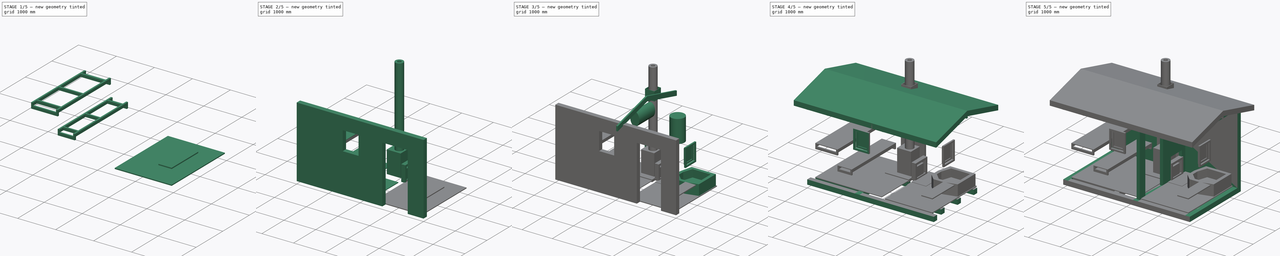
[diagram: build sequence overview — one tinted view per stage of 5, left to right]
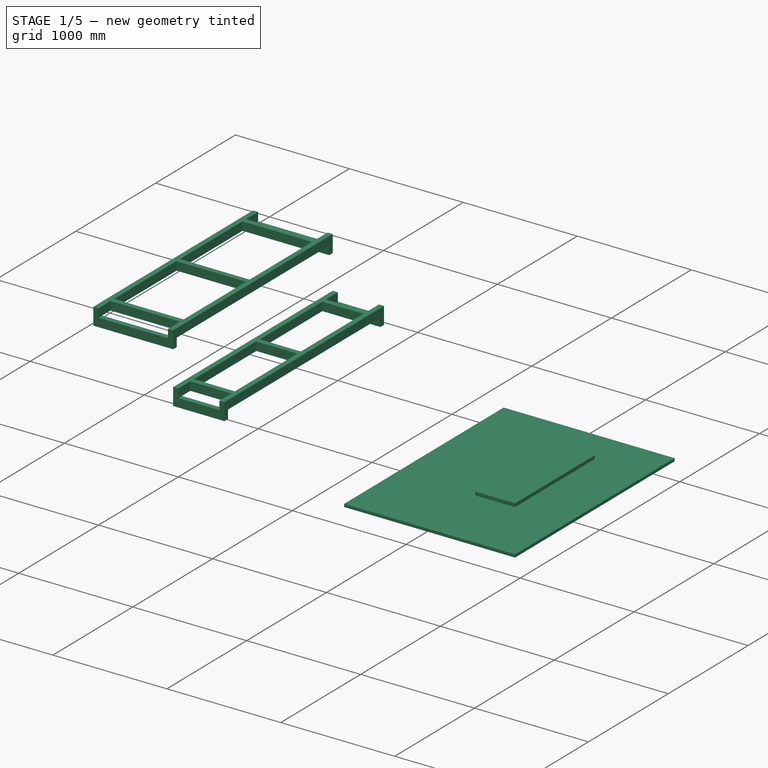
[diagram: stage 1 of 5 — iso view after this stage's code; geometry added in this stage tinted green]
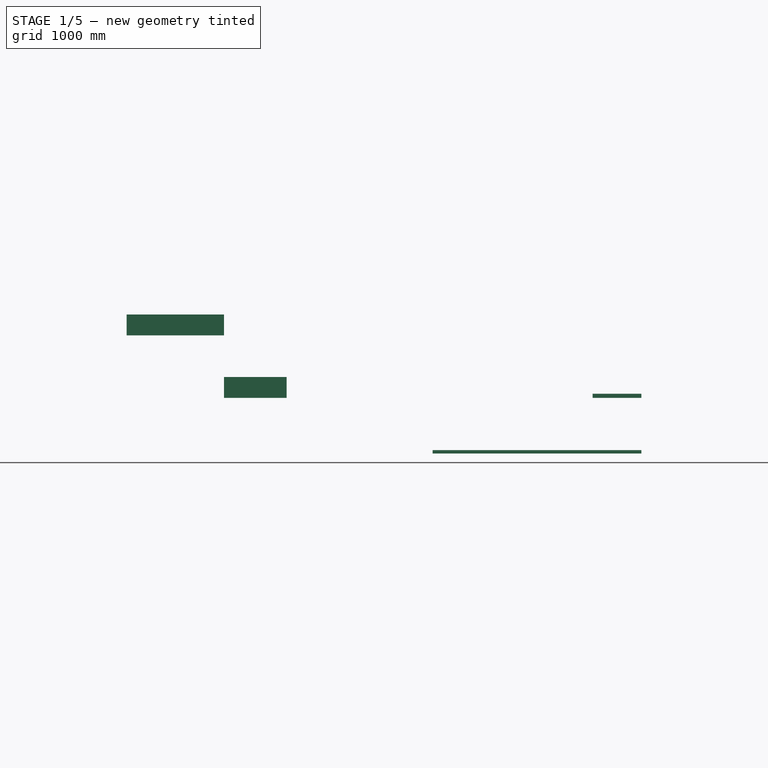
[diagram: stage 1 of 5 — front view after this stage's code; geometry added in this stage tinted green]
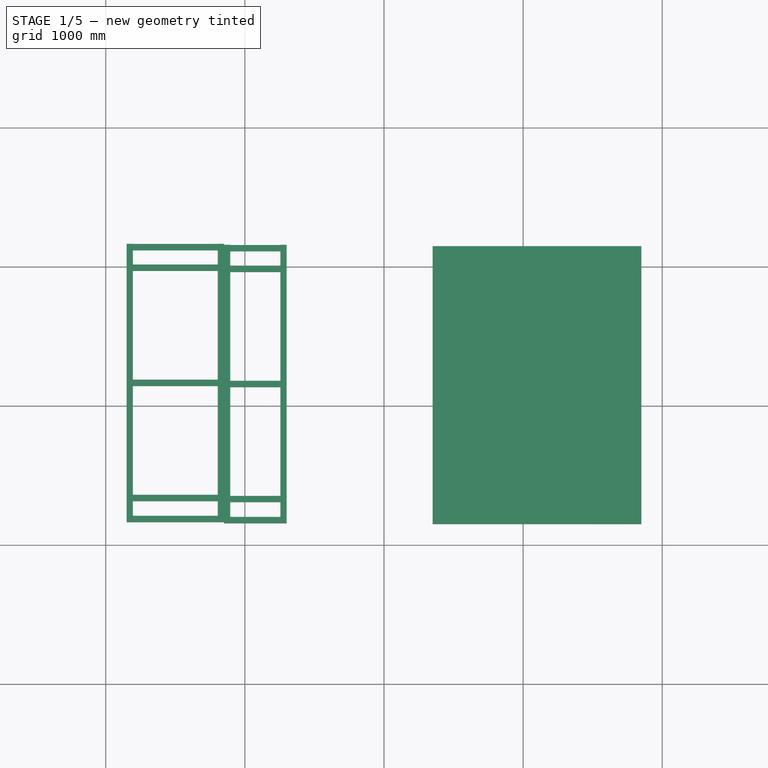
[diagram: stage 1 of 5 — top view after this stage's code; geometry added in this stage tinted green]
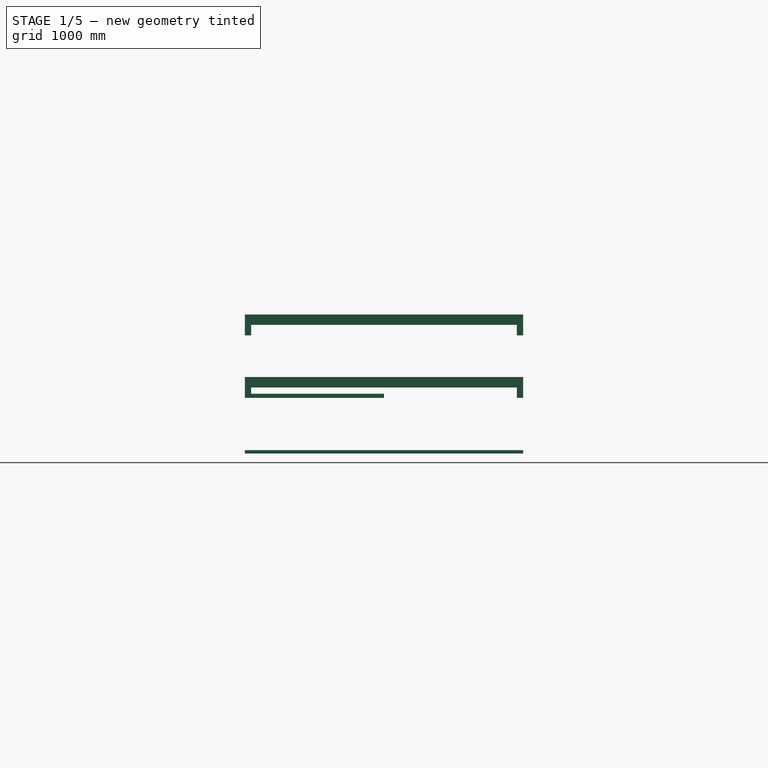
[diagram: stage 1 of 5 — right view after this stage's code; geometry added in this stage tinted green]
FCSTD DOCUMENT  (FreeCAD 0.18.4R)
Label: small_bathhouse_built_from_wood
License: All rights reserved
LicenseURL: http://en.wikipedia.org/wiki/All_rights_reserved
objects: Part::Part2DObjectPython×131, Part::FeaturePython×81, App::GeometryPython×11, App::FeaturePython×10, App::DocumentObjectGroup×5, Sketcher::SketchObject×2
note: 225 computed .brp shape members not serialized (recipe doc carries the construction recipe); baked Part::Feature solids carry a one-line shape summary decoded from their .brp

FEATURE [Part::FeaturePython] Structure063  label="лавочка"  # Arch/BIM object (typed FeaturePython)
  Base = -> Rectangle012
  FaceMaker = 0
  Height = 30
  HorizontalArea = 350000
  IfcRole = 0
  Length = 0
  MoveWithHost = false
  Nodes = (2) [(3675,650,0),(3675,650,30)]
  NodesOffset = 0
  Normal = (0,0,0)
  PerimeterLength = 2700
  Placement = pos=(0,0,400) rot=(0,0,1;0rad)
  VerticalArea = 81000
  Width = 100
FEATURE [Part::Part2DObjectPython] Rectangle085  # Draft 2D object (typed FeaturePython)
  ChamferSize = 0
  Columns = 1
  FilletRadius = 0
  Height = 2000
  Length = 1500
  MakeFace = false
  Placement = pos=(2350,150,0) rot=(0,0,1;0rad)
  Rows = 1
FEATURE [Part::FeaturePython] Structure064  label="пол предбанник доска шпунт 25 мм"  # Arch/BIM object (typed FeaturePython)
  Base = -> Rectangle085
  FaceMaker = 0
  Height = 25
  HorizontalArea = 3e+06
  IfcRole = 0
  Length = 0
  MoveWithHost = false
  Nodes = (2) [(3100,1150,0),(3100,1150,25)]
  NodesOffset = 0
  Normal = (0,0,0)
  PerimeterLength = 7000
  VerticalArea = 175000
  Width = 100
FEATURE [Part::Part2DObjectPython] Rectangle086  # Draft 2D object (typed FeaturePython)
  ChamferSize = 0
  Columns = 1
  FilletRadius = 0
  Height = 45
  Length = 2000
  MakeFace = true
  Placement = pos=(805,150,1000) rot=(0.707107,0.707107,0;3.14159rad)
  Rows = 1
FEATURE [Part::Part2DObjectPython] Rectangle087  # Draft 2D object (typed FeaturePython)
  ChamferSize = 0
  Columns = 1
  FilletRadius = 0
  Height = 45
  Length = 2000
  MakeFace = true
  Placement = pos=(150,150,1000) rot=(0.707107,0.707107,0;3.14159rad)
  Rows = 1
FEATURE [Part::Part2DObjectPython] Rectangle088  # Draft 2D object (typed FeaturePython)
  ChamferSize = 0
  Columns = 1
  FilletRadius = 0
  Height = 610
  Length = 45
  MakeFace = true
  Placement = pos=(195,1955,1000) rot=(0.707107,0.707107,0;3.14159rad)
  Rows = 1
FEATURE [Part::Part2DObjectPython] Rectangle089  # Draft 2D object (typed FeaturePython)
  ChamferSize = 0
  Columns = 1
  FilletRadius = 0
  Height = 610
  Length = 45
  MakeFace = true
  Placement = pos=(195,300,1000) rot=(0.707107,0.707107,0;3.14159rad)
  Rows = 1
FEATURE [Part::Part2DObjectPython] Rectangle090  # Draft 2D object (typed FeaturePython)
  ChamferSize = 0
  Columns = 1
  FilletRadius = 0
  Height = 610
  Length = 45
  MakeFace = true
  Placement = pos=(195,1127.5,1000) rot=(0.707107,0.707107,0;3.14159rad)
  Rows = 1
FEATURE [Part::Part2DObjectPython] Rectangle091  # Draft 2D object (typed FeaturePython)
  ChamferSize = 0
  Columns = 1
  FilletRadius = 0
  Height = 700
  Length = 45
  MakeFace = true
  Placement = pos=(150,2105,1000) rot=(0.707107,0.707107,0;3.14159rad)
  Rows = 1
FEATURE [Part::Part2DObjectPython] Rectangle092  # Draft 2D object (typed FeaturePython)
  ChamferSize = 0
  Columns = 1
  FilletRadius = 0
  Height = 700
  Length = 45
  MakeFace = true
  Placement = pos=(150,150,1000) rot=(0.707107,0.707107,0;3.14159rad)
  Rows = 1
FEATURE [App::DocumentObjectGroup] Group002  label="каркас полок брусок 70х45"
  Group = -> [Rectangle086,Rectangle087,Rectangle088,Rectangle089,Rectangle090,Rectangle091,Rectangle092]
FEATURE [Part::FeaturePython] Structure065  label="Structure044"  # Arch/BIM object (typed FeaturePython)
  Base = -> Rectangle086
  FaceMaker = 0
  Height = 75
  HorizontalArea = 90000
  IfcRole = 0
  Length = 0
  MoveWithHost = false
  Nodes = (2) [(1150,827.5,-1000),(1150,827.5,-1075)]
  NodesOffset = 0
  Normal = (0,0,0)
  PerimeterLength = 4090
  VerticalArea = 306750
  Width = 100
FEATURE [Part::FeaturePython] Structure066  label="Structure045"  # Arch/BIM object (typed FeaturePython)
  Base = -> Rectangle090
  FaceMaker = 0
  Height = 75
  HorizontalArea = 27450
  IfcRole = 0
  Length = 0
  MoveWithHost = false
  Nodes = (2) [(1150,500,-1000),(1150,500,-1075)]
  NodesOffset = 0
  Normal = (0,0,0)
  PerimeterLength = 1310
  VerticalArea = 98250
  Width = 100
FEATURE [Part::FeaturePython] Structure067  label="Structure046"  # Arch/BIM object (typed FeaturePython)
  Base = -> Rectangle091
  FaceMaker = 0
  Height = 75
  HorizontalArea = 31500
  IfcRole = 0
  Length = 0
  MoveWithHost = false
  Nodes = (2) [(2127.5,500,-1000),(2127.5,500,-1075)]
  NodesOffset = 0
  Normal = (0,0,0)
  PerimeterLength = 1490
  Placement = pos=(0,0,-75) rot=(0,0,1;0rad)
  VerticalArea = 111750
  Width = 100
FEATURE [Part::FeaturePython] Structure068  label="Structure047"  # Arch/BIM object (typed FeaturePython)
  Base = -> Rectangle087
  FaceMaker = 0
  Height = 75
  HorizontalArea = 90000
  IfcRole = 0
  Length = 0
  MoveWithHost = false
  Nodes = (2) [(1150,172.5,-1000),(1150,172.5,-1075)]
  NodesOffset = 0
  Normal = (0,0,0)
  PerimeterLength = 4090
  VerticalArea = 306750
  Width = 100
FEATURE [Part::FeaturePython] Structure069  label="Structure048"  # Arch/BIM object (typed FeaturePython)
  Base = -> Rectangle088
  FaceMaker = 0
  Height = 75
  HorizontalArea = 27450
  IfcRole = 0
  Length = 0
  MoveWithHost = false
  Nodes = (2) [(1977.5,500,-1000),(1977.5,500,-1075)]
  NodesOffset = 0
  Normal = (0,0,0)
  PerimeterLength = 1310
  VerticalArea = 98250
  Width = 100
FEATURE [Part::FeaturePython] Structure070  label="Structure049"  # Arch/BIM object (typed FeaturePython)
  Base = -> Rectangle089
  FaceMaker = 0
  Height = 75
  HorizontalArea = 27450
  IfcRole = 0
  Length = 0
  MoveWithHost = false
  Nodes = (2) [(322.5,500,-1000),(322.5,500,-1075)]
  NodesOffset = 0
  Normal = (0,0,0)
  PerimeterLength = 1310
  VerticalArea = 98250
  Width = 100
FEATURE [Part::FeaturePython] Structure071  label="Structure050"  # Arch/BIM object (typed FeaturePython)
  Base = -> Rectangle092
  FaceMaker = 0
  Height = 75
  HorizontalArea = 31500
  IfcRole = 0
  Length = 0
  MoveWithHost = false
  Nodes = (2) [(172.5,500,-1000),(172.5,500,-1075)]
  NodesOffset = 0
  Normal = (0,0,0)
  PerimeterLength = 1490
  Placement = pos=(0,0,-75) rot=(0,0,1;0rad)
  VerticalArea = 111750
  Width = 100
FEATURE [App::GeometryPython] BuildingPart010  label="каркас полки"  # Arch/BIM object (typed FeaturePython)
  Area = 0
  Group = -> [Structure065,Structure071,Structure069,Structure070,Structure068,Structure067,Structure066]
  Height = 0
  IfcRole = 0
  LevelOffset = 0
FEATURE [Part::Part2DObjectPython] Rectangle093  # Draft 2D object (typed FeaturePython)
  ChamferSize = 0
  Columns = 1
  FilletRadius = 0
  Height = 360
  Length = 45
  MakeFace = true
  Placement = pos=(895,1127.5,550) rot=(0.707107,0.707107,0;3.14159rad)
  Rows = 1
FEATURE [Part::Part2DObjectPython] Rectangle094  # Draft 2D object (typed FeaturePython)
  ChamferSize = 0
  Columns = 1
  FilletRadius = 0
  Height = 450
  Length = 45
  MakeFace = true
  Placement = pos=(850,2105,550) rot=(0.707107,0.707107,0;3.14159rad)
  Rows = 1
FEATURE [Part::Part2DObjectPython] Rectangle095  # Draft 2D object (typed FeaturePython)
  ChamferSize = 0
  Columns = 1
  FilletRadius = 0
  Height = 45
  Length = 2000
  MakeFace = true
  Placement = pos=(1255,150,550) rot=(0.707107,0.707107,0;3.14159rad)
  Rows = 1
FEATURE [Part::Part2DObjectPython] Rectangle096  # Draft 2D object (typed FeaturePython)
  ChamferSize = 0
  Columns = 1
  FilletRadius = 0
  Height = 45
  Length = 2000
  MakeFace = true
  Placement = pos=(850,150,550) rot=(0.707107,0.707107,0;3.14159rad)
  Rows = 1
FEATURE [Part::Part2DObjectPython] Rectangle097  # Draft 2D object (typed FeaturePython)
  ChamferSize = 0
  Columns = 1
  FilletRadius = 0
  Height = 360
  Length = 45
  MakeFace = true
  Placement = pos=(895,1955,550) rot=(0.707107,0.707107,0;3.14159rad)
  Rows = 1
FEATURE [Part::Part2DObjectPython] Rectangle098  # Draft 2D object (typed FeaturePython)
  ChamferSize = 0
  Columns = 1
  FilletRadius = 0
  Height = 360
  Length = 45
  MakeFace = true
  Placement = pos=(895,300,550) rot=(0.707107,0.707107,0;3.14159rad)
  Rows = 1
FEATURE [Part::Part2DObjectPython] Rectangle099  # Draft 2D object (typed FeaturePython)
  ChamferSize = 0
  Columns = 1
  FilletRadius = 0
  Height = 450
  Length = 45
  MakeFace = true
  Placement = pos=(850,150,550) rot=(0.707107,0.707107,0;3.14159rad)
  Rows = 1
FEATURE [App::DocumentObjectGroup] Group003  label="каркас полок брусок 70х046"
  Group = -> [Rectangle095,Rectangle096,Rectangle097,Rectangle098,Rectangle093,Rectangle094,Rectangle099]
FEATURE [Part::FeaturePython] Structure072  label="Structure051"  # Arch/BIM object (typed FeaturePython)
  Base = -> Rectangle095
  FaceMaker = 0
  Height = 75
  HorizontalArea = 90000
  IfcRole = 0
  Length = 0
  MoveWithHost = false
  Nodes = (2) [(1150,1277.5,-550),(1150,1277.5,-625)]
  NodesOffset = 0
  Normal = (0,0,0)
  PerimeterLength = 4090
  VerticalArea = 306750
  Width = 100
FEATURE [Part::FeaturePython] Structure073  label="Structure052"  # Arch/BIM object (typed FeaturePython)
  Base = -> Rectangle096
  FaceMaker = 0
  Height = 75
  HorizontalArea = 90000
  IfcRole = 0
  Length = 0
  MoveWithHost = false
  Nodes = (2) [(1150,872.5,-550),(1150,872.5,-625)]
  NodesOffset = 0
  Normal = (0,0,0)
  PerimeterLength = 4090
  VerticalArea = 306750
  Width = 100
FEATURE [Part::FeaturePython] Structure074  label="Structure053"  # Arch/BIM object (typed FeaturePython)
  Base = -> Rectangle093
  FaceMaker = 0
  Height = 75
  HorizontalArea = 16200
  IfcRole = 0
  Length = 0
  MoveWithHost = false
  Nodes = (2) [(1150,1075,-550),(1150,1075,-625)]
  NodesOffset = 0
  Normal = (0,0,0)
  PerimeterLength = 810
  VerticalArea = 60750
  Width = 100
FEATURE [Part::FeaturePython] Structure075  label="Structure054"  # Arch/BIM object (typed FeaturePython)
  Base = -> Rectangle094
  FaceMaker = 0
  Height = 75
  HorizontalArea = 20250
  IfcRole = 0
  Length = 0
  MoveWithHost = false
  Nodes = (2) [(2127.5,1075,-550),(2127.5,1075,-625)]
  NodesOffset = 0
  Normal = (0,0,0)
  PerimeterLength = 990
  Placement = pos=(0,0,-75) rot=(0,0,1;0rad)
  VerticalArea = 74250
  Width = 100
FEATURE [Part::FeaturePython] Structure076  label="Structure055"  # Arch/BIM object (typed FeaturePython)
  Base = -> Rectangle098
  FaceMaker = 0
  Height = 75
  HorizontalArea = 16200
  IfcRole = 0
  Length = 0
  MoveWithHost = false
  Nodes = (2) [(322.5,1075,-550),(322.5,1075,-625)]
  NodesOffset = 0
  Normal = (0,0,0)
  PerimeterLength = 810
  VerticalArea = 60750
  Width = 100
FEATURE [Part::FeaturePython] Structure077  label="Structure056"  # Arch/BIM object (typed FeaturePython)
  Base = -> Rectangle099
  FaceMaker = 0
  Height = 75
  HorizontalArea = 20250
  IfcRole = 0
  Length = 0
  MoveWithHost = false
  Nodes = (2) [(172.5,1075,-550),(172.5,1075,-625)]
  NodesOffset = 0
  Normal = (0,0,0)
  PerimeterLength = 990
  Placement = pos=(0,0,-75) rot=(0,0,1;0rad)
  VerticalArea = 74250
  Width = 100
FEATURE [Part::FeaturePython] Structure078  label="Structure057"  # Arch/BIM object (typed FeaturePython)
  Base = -> Rectangle097
  FaceMaker = 0
  Height = 75
  HorizontalArea = 16200
  IfcRole = 0
  Length = 0
  MoveWithHost = false
  Nodes = (2) [(1977.5,1075,-550),(1977.5,1075,-625)]
  NodesOffset = 0
  Normal = (0,0,0)
  PerimeterLength = 810
  VerticalArea = 60750
  Width = 100
FEATURE [App::GeometryPython] BuildingPart011  label="каркас полки ниж."  # Arch/BIM object (typed FeaturePython)
  Area = 0
  Group = -> [Structure072,Structure073,Structure078,Structure077,Structure076,Structure075,Structure074]
  Height = 0
  IfcRole = 0
  LevelOffset = 0
FEATURE [App::GeometryPython] BuildingPart009  label="полки"  # Arch/BIM object (typed FeaturePython)
  Area = 0
  Group = -> [Structure053,Structure054,Group002,BuildingPart010,Group003,BuildingPart011]
  Height = 0
  IfcRole = 0
  LevelOffset = 0
FEATURE [App::DocumentObjectGroup] Group001  label="модель"
  Group = -> [Rectangle018,Rectangle019,Rectangle020,Rectangle021,Rectangle022,Rectangle023,Rectangle025,Rectangle026,Rectangle027,Rectangle028,Rectangle037,Wire002,Rectangle040,Rectangle041,Rectangle042,Rectangle043,Rectangle044,Rectangle046,Rectangle047,Rectangle049,Rectangle048,Rectangle050,Rectangle052,Rectangle051,Rectangle053,Rectangle054,Rectangle045,Circle004,Wire011,Wire012,Wire013,Wire014,Wire015,+7 more]
FEATURE [Part::FeaturePython] Structure005  # Arch/BIM object (typed FeaturePython)
  Base = -> Rectangle019
  FaceMaker = 0
  Height = 2240
  HorizontalArea = 360000
  IfcRole = 0
  Length = 0
  MoveWithHost = false
  Nodes = (2) [(75,1150,0),(75,1150,2100)]
  NodesOffset = 0
  Normal = (0,0,0)
  PerimeterLength = 4900
  Subtractions = -> [Structure051]
  VerticalArea = 10986000
  Width = 100
FEATURE [App::GeometryPython] BuildingPart  label="стена брус 150х150 16 в. фронтоны 2."  # Arch/BIM object (typed FeaturePython)
  Area = 0
  Group = -> [Structure003,Structure005,Structure021,Structure020,Structure017,Structure016,Structure010,Structure007]
  Height = 0
  IfcRole = 0
  LevelOffset = 0
FEATURE [App::GeometryPython] BuildingPart002  label="баня_4х2.3"  # Arch/BIM object (typed FeaturePython)
  Area = 0
  BuildingType = 0
  Group = -> [BuildingPart001,BuildingPart003,BuildingPart004,BuildingPart005,BuildingPart,Structure039,Structure040,Structure041,Wall,BuildingPart006,BuildingPart009,Structure063,Structure062,Structure064]
  Height = 0
  IfcRole = 11
  LevelOffset = 0
FEATURE [Part::Part2DObjectPython] Rectangle076  # Draft 2D object (typed FeaturePython)
  ChamferSize = 0
  Columns = 1
  FilletRadius = 0
  Height = 100
  Length = 100
  MakeFace = false
  Placement = pos=(0,150,-150) rot=(0.57735,-0.57735,-0.57735;2.0944rad)
  Rows = 1
  Support = -> [Structure005]
FEATURE [Part::FeaturePython] Structure051  label="продух 100х100"  # Arch/BIM object (typed FeaturePython)
  Base = -> Rectangle076
  FaceMaker = 0
  Height = 150
  HorizontalArea = 15000
  IfcRole = 0
  Length = 0
  MoveWithHost = false
  Nodes = (2) [(0,100,-100),(3.33067e-14,100,-250)]
  NodesOffset = 0
  Normal = (1,0,0)
  PerimeterLength = 500
  Placement = pos=(0,200,650) rot=(0,0,1;0rad)
  VerticalArea = 50000
  Width = 100
FEATURE [Part::Part2DObjectPython] Rectangle077  # Draft 2D object (typed FeaturePython)
  ChamferSize = 0
  Columns = 1
  FilletRadius = 0
  Height = 950
  Length = 50
  MakeFace = false
  Placement = pos=(150,0,0) rot=(1,0,0;1.5708rad)
  Rows = 1
  Support = -> [Structure005]
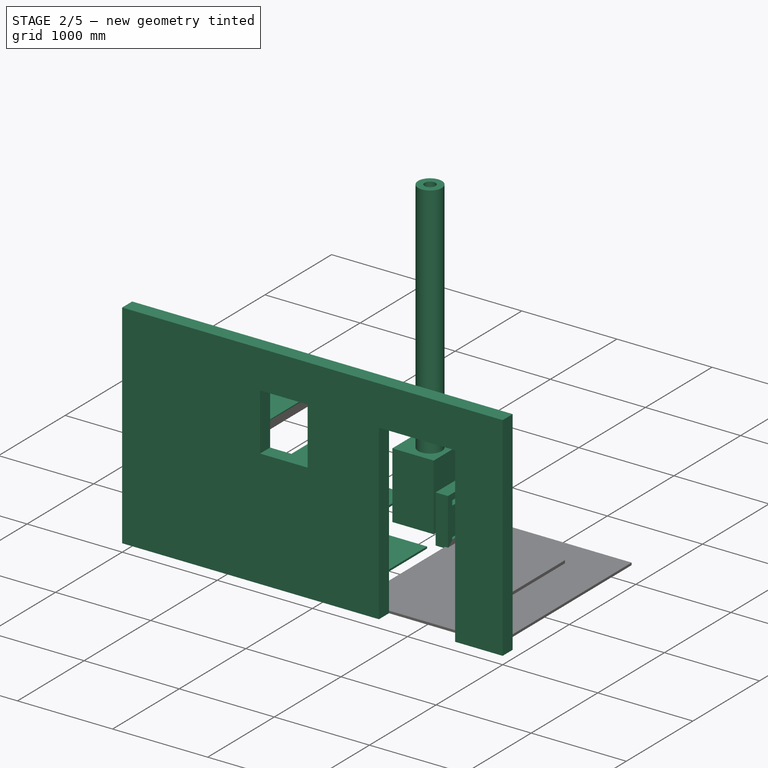
[diagram: stage 2 of 5 — iso view after this stage's code; geometry added in this stage tinted green]
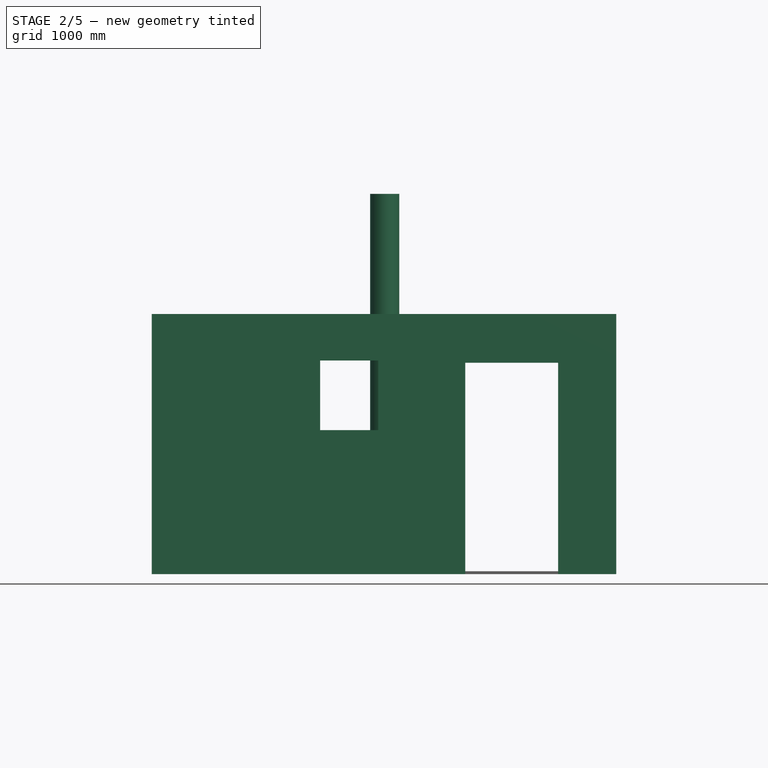
[diagram: stage 2 of 5 — front view after this stage's code; geometry added in this stage tinted green]
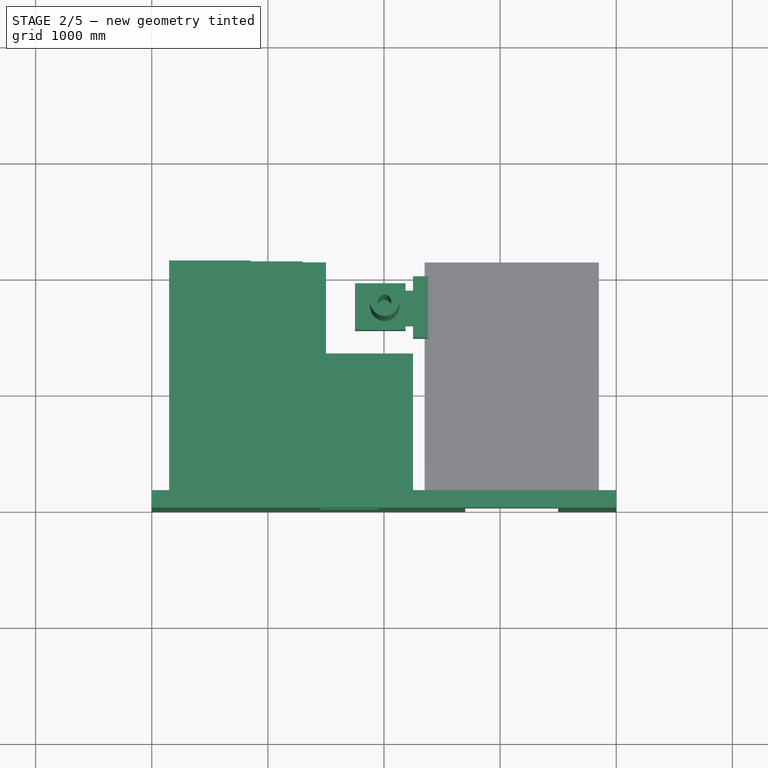
[diagram: stage 2 of 5 — top view after this stage's code; geometry added in this stage tinted green]
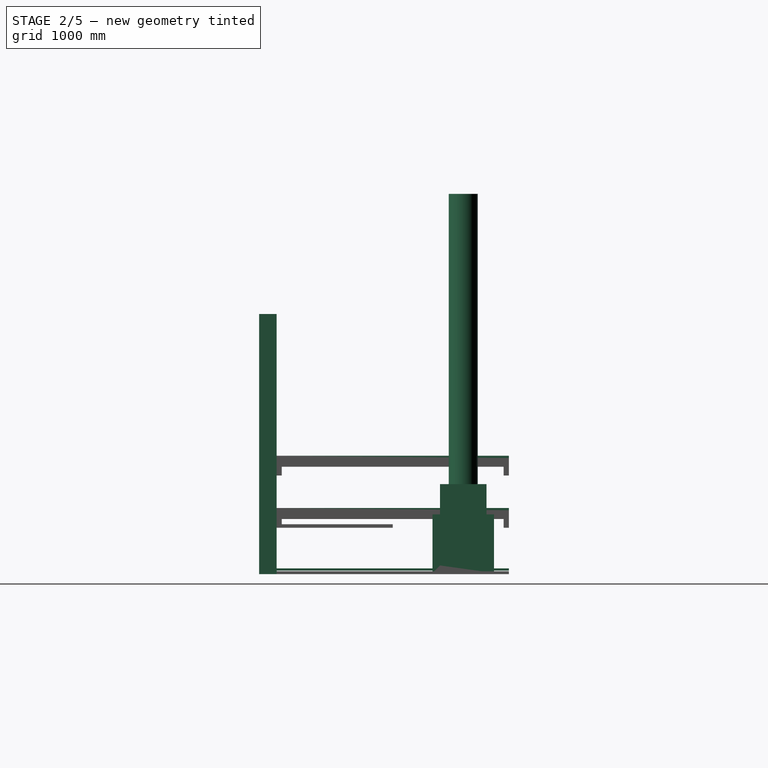
[diagram: stage 2 of 5 — right view after this stage's code; geometry added in this stage tinted green]
FEATURE [Part::Part2DObjectPython] Rectangle  # Draft 2D object (typed FeaturePython)
  ChamferSize = 0
  Columns = 1
  FilletRadius = 0
  Height = 2300
  Length = 4000
  MakeFace = false
  Rows = 1
FEATURE [Part::Part2DObjectPython] Rectangle001  # Draft 2D object (typed FeaturePython)
  ChamferSize = 0
  Columns = 1
  FilletRadius = 0
  Height = 2000
  Length = 3700
  MakeFace = false
  Placement = pos=(150,150,0) rot=(0,0,1;0rad)
  Rows = 1
FEATURE [Part::Part2DObjectPython] Line  # Draft 2D object (typed FeaturePython)
  ChamferSize = 0
  Closed = false
  End = (2300,-100,0)
  FilletRadius = 0
  Length = 2500
  MakeFace = false
  Placement = pos=(2300,2400,0) rot=(0,0,1;0rad)
  Points = (2) [(0,0,0),(0,-2500,0)]
  Start = (2300,2400,0)
  Subdivisions = 0
FEATURE [Part::Part2DObjectPython] Rectangle002  # Draft 2D object (typed FeaturePython)
  ChamferSize = 0
  Columns = 1
  FilletRadius = 0
  Height = 2000
  Length = 100
  MakeFace = false
  Placement = pos=(2250,150,0) rot=(0,0,1;0rad)
  Rows = 1
FEATURE [Part::Part2DObjectPython] Circle  # Draft 2D object (typed FeaturePython)
  FirstAngle = 0
  LastAngle = 0
  MakeFace = false
  Placement = pos=(3200,1500,0) rot=(0,0,1;0rad)
  Radius = 25
FEATURE [Part::Part2DObjectPython] Rectangle005  # Draft 2D object (typed FeaturePython)
  ChamferSize = 0
  Columns = 1
  FilletRadius = 0
  Height = 400
  Length = 600
  MakeFace = false
  Placement = pos=(1750,1557.5,0) rot=(0,0,1;0rad)
  Rows = 1
FEATURE [Part::Part2DObjectPython] Rectangle006  # Draft 2D object (typed FeaturePython)
  ChamferSize = 0
  Columns = 1
  FilletRadius = 0
  Height = 200
  Length = 400
  MakeFace = false
  Placement = pos=(1500,-25,0) rot=(0,0,1;0rad)
  Rows = 1
FEATURE [Part::Part2DObjectPython] Rectangle007  # Draft 2D object (typed FeaturePython)
  ChamferSize = 0
  Columns = 1
  FilletRadius = 0
  Height = 400
  Length = 200
  MakeFace = false
  Placement = pos=(3825,500,0) rot=(0,0,1;0rad)
  Rows = 1
FEATURE [App::FeaturePython] Dimension  # Draft dimension (typed FeaturePython)
  Diameter = false
  Dimline = (4000,2800,0)
  Direction = (0,0,0)
  Distance = 4000
  End = (4000,2300,0)
  Normal = (0,0,1)
  Start = (0,2300,0)
FEATURE [App::FeaturePython] Dimension001  # Draft dimension (typed FeaturePython)
  Diameter = false
  Dimline = (4800,2300,0)
  Direction = (0,0,0)
  Distance = 2300
  End = (4000,0,0)
  Normal = (0,0,1)
  Start = (4000,2300,0)
FEATURE [Part::Part2DObjectPython] Line001  # Draft 2D object (typed FeaturePython)
  ChamferSize = 0
  Closed = false
  End = (1700,-300,0)
  FilletRadius = 0
  Length = 700
  MakeFace = false
  Placement = pos=(1700,400,0) rot=(0,0,1;0rad)
  Points = (2) [(0,0,0),(0,-700,0)]
  Start = (1700,400,0)
  Subdivisions = 0
FEATURE [App::FeaturePython] Dimension002  # Draft dimension (typed FeaturePython)
  Diameter = false
  Dimline = (1700,-600,0)
  Direction = (0,0,0)
  Distance = 1700
  End = (1700,0,0)
  Normal = (0,0,1)
  Start = (0,0,0)
FEATURE [Part::Part2DObjectPython] Line002  # Draft 2D object (typed FeaturePython)
  ChamferSize = 0
  Closed = false
  End = (4300,700,0)
  FilletRadius = 0
  Length = 2300
  MakeFace = false
  Placement = pos=(3600,700,0) rot=(0,0,1;0rad)
  Points = (2) [(-1600,0,0),(700,0,0)]
  Start = (2000,700,0)
  Subdivisions = 0
FEATURE [App::FeaturePython] Dimension003  # Draft dimension (typed FeaturePython)
  Diameter = false
  Dimline = (2300,2600,0)
  Direction = (0,0,0)
  Distance = 2300
  End = (2300,2300,0)
  Normal = (0,0,1)
  Start = (0,2300,0)
FEATURE [Part::Part2DObjectPython] Circle001  # Draft 2D object (typed FeaturePython)
  FirstAngle = 0
  LastAngle = 0
  MakeFace = false
  Placement = pos=(800,1000,-40) rot=(0,0,1;0rad)
  Radius = 40
FEATURE [Part::Part2DObjectPython] Rectangle008  # Draft 2D object (typed FeaturePython)
  ChamferSize = 0
  Columns = 1
  FilletRadius = 0
  Height = 2000
  Length = 700
  MakeFace = false
  Placement = pos=(150,150,0) rot=(0,0,1;0rad)
  Rows = 1
FEATURE [Part::Part2DObjectPython] Rectangle009  # Draft 2D object (typed FeaturePython)
  ChamferSize = 0
  Columns = 1
  FilletRadius = 0
  Height = 2000
  Length = 450
  MakeFace = false
  Placement = pos=(850,150,0) rot=(0,0,1;0rad)
  Rows = 1
FEATURE [Part::Part2DObjectPython] Circle002  # Draft 2D object (typed FeaturePython)
  FirstAngle = 0
  LastAngle = 0
  MakeFace = false
  Placement = pos=(2005.84,1757.5,0) rot=(0,0,1;0rad)
  Radius = 57.5
FEATURE [App::FeaturePython] Dimension004  # Draft dimension (typed FeaturePython)
  Diameter = false
  Dimline = (4400,700,0)
  Direction = (0,0,0)
  Distance = 700
  End = (4000,0,0)
  Normal = (0,0,1)
  Start = (4000,700,0)
FEATURE [Part::Part2DObjectPython] Rectangle010  # Draft 2D object (typed FeaturePython)
  ChamferSize = 0
  Columns = 1
  FilletRadius = 0
  Height = 200
  Length = 800
  MakeFace = false
  Placement = pos=(2700,-25,0) rot=(0,0,1;0rad)
  Rows = 1
FEATURE [Part::Part2DObjectPython] Rectangle011  # Draft 2D object (typed FeaturePython)
  ChamferSize = 0
  Columns = 1
  FilletRadius = 0
  Height = 800
  Length = 200
  MakeFace = false
  Placement = pos=(2200,350,0) rot=(0,0,1;0rad)
  Rows = 1
FEATURE [Part::Part2DObjectPython] Arc  # Draft 2D object (typed FeaturePython)
  FirstAngle = -43.7811
  LastAngle = 0
  MakeFace = false
  Placement = pos=(2700,75,0) rot=(0,0,1;0rad)
  Radius = 800
FEATURE [Part::Part2DObjectPython] Line003  # Draft 2D object (typed FeaturePython)
  ChamferSize = 0
  Closed = false
  End = (2700,75,0)
  FilletRadius = 0
  Length = 800
  MakeFace = false
  Placement = pos=(3277.59,-478.524,0) rot=(0,0,1;0rad)
  Points = (2) [(0,0,0),(-577.591,553.524,0)]
  Start = (3277.59,-478.524,0)
  Subdivisions = 0
FEATURE [Part::Part2DObjectPython] Line004  # Draft 2D object (typed FeaturePython)
  ChamferSize = 0
  Closed = false
  End = (3100,-200,0)
  FilletRadius = 0
  Length = 600
  MakeFace = false
  Placement = pos=(3100,400,0) rot=(0,0,1;0rad)
  Points = (2) [(0,0,0),(0,-600,0)]
  Start = (3100,400,0)
  Subdivisions = 0
FEATURE [App::FeaturePython] Dimension005  # Draft dimension (typed FeaturePython)
  Diameter = false
  Dimline = (1700,-900,0)
  Direction = (0,0,0)
  Distance = 3100
  End = (3100,0,0)
  Normal = (0,0,1)
  Start = (0,0,0)
FEATURE [Part::Part2DObjectPython] Arc001  # Draft 2D object (typed FeaturePython)
  FirstAngle = -90
  LastAngle = -42.5104
  MakeFace = false
  Placement = pos=(2300,1150,0) rot=(0,0,1;0rad)
  Radius = 800
FEATURE [Part::Part2DObjectPython] Line005  # Draft 2D object (typed FeaturePython)
  ChamferSize = 0
  Closed = false
  End = (2889.72,609.42,0)
  FilletRadius = 0
  Length = 800
  MakeFace = false
  Placement = pos=(2300,1150,0) rot=(0,0,1;0rad)
  Points = (2) [(0,0,0),(589.723,-540.58,0)]
  Start = (2300,1150,0)
  Subdivisions = 0
FEATURE [Part::Part2DObjectPython] Rectangle012  # Draft 2D object (typed FeaturePython)
  ChamferSize = 0
  Columns = 1
  FilletRadius = 0
  Height = 1000
  Length = 350
  MakeFace = false
  Placement = pos=(3500,150,0) rot=(0,0,1;0rad)
  Rows = 1
FEATURE [Part::Part2DObjectPython] Rectangle018  label="стена_брус_150х151"  # Draft 2D object (typed FeaturePython)
  ChamferSize = 0
  Columns = 1
  FilletRadius = 0
  Height = 150
  Length = 2700
  MakeFace = false
  Rows = 1
FEATURE [Part::Part2DObjectPython] Line010  # Draft 2D object (typed FeaturePython)
  ChamferSize = 0
  Closed = false
  End = (150,2400,0)
  FilletRadius = 0
  Length = 250
  MakeFace = false
  Placement = pos=(150,2150,0) rot=(0,0,1;0rad)
  Points = (2) [(0,0,0),(1.13687e-13,250,0)]
  Start = (150,2150,0)
  Subdivisions = 0
FEATURE [Part::Part2DObjectPython] Line011  # Draft 2D object (typed FeaturePython)
  ChamferSize = 0
  Closed = false
  End = (3850,2500,0)
  FilletRadius = 0
  Length = 350
  MakeFace = false
  Placement = pos=(3850,2150,0) rot=(0,0,1;0rad)
  Points = (2) [(0,0,0),(0,350,0)]
  Start = (3850,2150,0)
  Subdivisions = 0
FEATURE [Part::Part2DObjectPython] Line012  # Draft 2D object (typed FeaturePython)
  ChamferSize = 0
  Closed = false
  End = (3850,-200,0)
  FilletRadius = 0
  Length = 350
  MakeFace = false
  Placement = pos=(3850,150,0) rot=(0,0,1;0rad)
  Points = (2) [(0,0,0),(0,-350,0)]
  Start = (3850,150,0)
  Subdivisions = 0
FEATURE [Part::Part2DObjectPython] Line013  # Draft 2D object (typed FeaturePython)
  ChamferSize = 0
  Closed = false
  End = (150,-100,0)
  FilletRadius = 0
  Length = 250
  MakeFace = false
  Placement = pos=(150,150,0) rot=(0,0,1;0rad)
  Points = (2) [(0,0,0),(0,-250,0)]
  Start = (150,150,0)
  Subdivisions = 0
FEATURE [Part::Part2DObjectPython] Line014  # Draft 2D object (typed FeaturePython)
  ChamferSize = 0
  Closed = false
  End = (1500,-200,0)
  FilletRadius = 0
  Length = 200
  MakeFace = false
  Placement = pos=(1500,0,0) rot=(0,0,1;0rad)
  Points = (2) [(0,0,0),(0,-200,0)]
  Start = (1500,0,0)
  Subdivisions = 0
FEATURE [Part::Part2DObjectPython] Line015  # Draft 2D object (typed FeaturePython)
  ChamferSize = 0
  Closed = false
  End = (1900,400,0)
  FilletRadius = 0
  Length = 250
  MakeFace = false
  Placement = pos=(1900,150,0) rot=(0,0,1;0rad)
  Points = (2) [(0,0,0),(0,250,0)]
  Start = (1900,150,0)
  Subdivisions = 0
FEATURE [Part::Part2DObjectPython] Line016  # Draft 2D object (typed FeaturePython)
  ChamferSize = 0
  Closed = false
  End = (2700,400,0)
  FilletRadius = 0
  Length = 250
  MakeFace = false
  Placement = pos=(2700,150,0) rot=(0,0,1;0rad)
  Points = (2) [(0,0,0),(0,250,0)]
  Start = (2700,150,0)
  Subdivisions = 0
FEATURE [Part::Part2DObjectPython] Line017  # Draft 2D object (typed FeaturePython)
  ChamferSize = 0
  Closed = false
  End = (3500,-200,0)
  FilletRadius = 0
  Length = 200
  MakeFace = false
  Placement = pos=(3500,0,0) rot=(0,0,1;0rad)
  Points = (2) [(0,0,0),(0,-200,0)]
  Start = (3500,0,0)
  Subdivisions = 0
FEATURE [Part::Part2DObjectPython] Line018  # Draft 2D object (typed FeaturePython)
  ChamferSize = 0
  Closed = false
  End = (3500,900,0)
  FilletRadius = 0
  Length = 350
  MakeFace = false
  Placement = pos=(3850,900,0) rot=(0,0,1;0rad)
  Points = (2) [(0,0,0),(-350,2.27374e-13,0)]
  Start = (3850,900,0)
  Subdivisions = 0
FEATURE [Part::Part2DObjectPython] Line019  # Draft 2D object (typed FeaturePython)
  ChamferSize = 0
  Closed = false
  End = (4300,500,0)
  FilletRadius = 0
  Length = 300
  MakeFace = false
  Placement = pos=(4000,500,0) rot=(0,0,1;0rad)
  Points = (2) [(0,0,0),(300,2.84217e-13,0)]
  Start = (4000,500,0)
  Subdivisions = 0
FEATURE [Part::Part2DObjectPython] Line020  # Draft 2D object (typed FeaturePython)
  ChamferSize = 0
  Closed = false
  End = (2700,1150,0)
  FilletRadius = 0
  Length = 350
  MakeFace = false
  Placement = pos=(2350,1150,0) rot=(0,0,1;0rad)
  Points = (2) [(0,0,0),(350,0,0)]
  Start = (2350,1150,0)
  Subdivisions = 0
FEATURE [Part::Part2DObjectPython] Line021  # Draft 2D object (typed FeaturePython)
  ChamferSize = 0
  Closed = false
  End = (2000,350,0)
  FilletRadius = 0
  Length = 250
  MakeFace = false
  Placement = pos=(2250,350,0) rot=(0,0,1;0rad)
  Points = (2) [(0,0,0),(-250,0,0)]
  Start = (2250,350,0)
  Subdivisions = 0
FEATURE [Part::Part2DObjectPython] Rectangle019  label="стена_брус_150х150"  # Draft 2D object (typed FeaturePython)
  ChamferSize = 0
  Columns = 1
  FilletRadius = 0
  Height = 2300
  Length = 150
  MakeFace = false
  Rows = 1
FEATURE [Part::Part2DObjectPython] Rectangle020  label="стена_брус_150х152"  # Draft 2D object (typed FeaturePython)
  ChamferSize = 0
  Columns = 1
  FilletRadius = 0
  Height = 150
  Length = 4000
  MakeFace = false
  Placement = pos=(0,2150,0) rot=(0,0,1;0rad)
  Rows = 1
FEATURE [Part::Part2DObjectPython] Rectangle021  label="стена_брус_150х153"  # Draft 2D object (typed FeaturePython)
  ChamferSize = 0
  Columns = 1
  FilletRadius = 0
  Height = 1400
  Length = 150
  MakeFace = false
  Placement = pos=(3850,900,0) rot=(0,0,1;0rad)
  Rows = 1
FEATURE [Part::Part2DObjectPython] Rectangle022  label="стена_брус_150х154"  # Draft 2D object (typed FeaturePython)
  ChamferSize = 0
  Columns = 1
  FilletRadius = 0
  Height = 500
  Length = 150
  MakeFace = false
  Placement = pos=(3850,0,0) rot=(0,0,1;0rad)
  Rows = 1
FEATURE [Part::Part2DObjectPython] Rectangle023  label="стена_брус_150х155"  # Draft 2D object (typed FeaturePython)
  ChamferSize = 0
  Columns = 1
  FilletRadius = 0
  Height = 150
  Length = 500
  MakeFace = false
  Placement = pos=(3500,-3.1e-14,0) rot=(0,0,1;0rad)
  Rows = 1
FEATURE [Part::Part2DObjectPython] Rectangle024  label="перегородка_брус_100х150"  # Draft 2D object (typed FeaturePython)
  ChamferSize = 0
  Columns = 1
  FilletRadius = 0
  Height = 2100
  Length = 100
  MakeFace = false
  Placement = pos=(2250,100,0) rot=(0,0,1;0rad)
  Rows = 1
FEATURE [Part::FeaturePython] Structure  # Arch/BIM object (typed FeaturePython)
  Base = -> Rectangle018
  FaceMaker = 0
  Height = 1260
  HorizontalArea = 405000
  IfcRole = 0
  Length = 0
  MoveWithHost = false
  Nodes = (2) [(1350,75,0),(1350,75,1260)]
  NodesOffset = 0
  Normal = (0,0,0)
  PerimeterLength = 5700
  VerticalArea = 7182000
  Width = 100
FEATURE [Part::FeaturePython] Structure002  # Arch/BIM object (typed FeaturePython)
  Base = -> Rectangle023
  FaceMaker = 0
  Height = 1820
  HorizontalArea = 75000
  IfcRole = 0
  Length = 0
  MoveWithHost = false
  Nodes = (2) [(3750,75,0),(3750,75,1820)]
  NodesOffset = 0
  Normal = (0,0,0)
  PerimeterLength = 1300
  VerticalArea = 2.366e+06
  Width = 100
FEATURE [Part::Part2DObjectPython] Rectangle026  label="стена_брус_150х157"  # Draft 2D object (typed FeaturePython)
  ChamferSize = 0
  Columns = 1
  FilletRadius = 0
  Height = 150
  Length = 1500
  MakeFace = false
  Placement = pos=(0,-9.18e-14,0) rot=(0,0,1;0rad)
  Rows = 1
FEATURE [Part::Part2DObjectPython] Rectangle027  label="стена_брус_150х158"  # Draft 2D object (typed FeaturePython)
  ChamferSize = 0
  Columns = 1
  FilletRadius = 0
  Height = 150
  Length = 800
  MakeFace = false
  Placement = pos=(1900,-4.9e-14,0) rot=(0,0,1;0rad)
  Rows = 1
FEATURE [Part::Part2DObjectPython] Rectangle028  label="стена_брус_150х159"  # Draft 2D object (typed FeaturePython)
  ChamferSize = 0
  Columns = 1
  FilletRadius = 0
  Height = 150
  Length = 4000
  MakeFace = false
  Placement = pos=(0,-2.449e-13,0) rot=(0,0,1;0rad)
  Rows = 1
FEATURE [Part::FeaturePython] Structure008  # Arch/BIM object (typed FeaturePython)
  Base = -> Rectangle027
  FaceMaker = 0
  Height = 560
  HorizontalArea = 120000
  IfcRole = 0
  Length = 0
  MoveWithHost = false
  Nodes = (2) [(2300,75,0),(2300,75,560)]
  NodesOffset = 0
  Normal = (0,0,0)
  PerimeterLength = 1900
  Placement = pos=(0,0,1260) rot=(0,0,1;0rad)
  VerticalArea = 1.064e+06
  Width = 100
FEATURE [Part::FeaturePython] Structure009  # Arch/BIM object (typed FeaturePython)
  Base = -> Rectangle026
  FaceMaker = 0
  Height = 560
  HorizontalArea = 217500
  IfcRole = 0
  Length = 0
  MoveWithHost = false
  Nodes = (2) [(750,75,0),(750,75,560)]
  NodesOffset = 0
  Normal = (0,0,0)
  PerimeterLength = 3200
  Placement = pos=(0,0,1260) rot=(0,0,1;0rad)
  VerticalArea = 1.792e+06
  Width = 100
FEATURE [Part::FeaturePython] Structure010  # Arch/BIM object (typed FeaturePython)
  Additions = -> [Structure,Structure002,Structure008,Structure009]
  Base = -> Rectangle028
  FaceMaker = 0
  Height = 420
  HorizontalArea = 675000
  IfcRole = 0
  Length = 0
  MoveWithHost = false
  Nodes = (2) [(2000,75,0),(2000,75,280)]
  NodesOffset = 0
  Normal = (0,0,0)
  PerimeterLength = 8300
  Placement = pos=(0,0,1820) rot=(0,0,1;0rad)
  VerticalArea = 1.5806e+07
  Width = 100
FEATURE [Part::Part2DObjectPython] Rectangle071  # Draft 2D object (typed FeaturePython)
  ChamferSize = 0
  Columns = 1
  FilletRadius = 0
  Height = 785
  Length = 65
  MakeFace = false
  Placement = pos=(2185,1365,0) rot=(0,0,1;0rad)
  Rows = 1
FEATURE [Part::Part2DObjectPython] Rectangle072  # Draft 2D object (typed FeaturePython)
  ChamferSize = 0
  Columns = 1
  FilletRadius = 0
  Height = 400
  Length = 65
  MakeFace = false
  Placement = pos=(2185,1557.5,0) rot=(0,0,1;0rad)
  Rows = 1
FEATURE [Part::FeaturePython] Structure047  label="Structure041"  # Arch/BIM object (typed FeaturePython)
  Base = -> Rectangle072
  FaceMaker = 0
  Height = 450
  HorizontalArea = 26000
  IfcRole = 0
  Length = 0
  MoveWithHost = false
  Nodes = (2) [(2217.5,1757.5,0),(2217.5,1757.5,450)]
  NodesOffset = 0
  Normal = (0,0,0)
  PerimeterLength = 930
  VerticalArea = 418500
  Width = 100
FEATURE [Part::FeaturePython] Structure046  label="экран печи кирпич "  # Arch/BIM object (typed FeaturePython)
  Base = -> Rectangle071
  FaceMaker = 0
  Height = 1100
  HorizontalArea = 51025
  IfcRole = 0
  Length = 0
  MoveWithHost = false
  Nodes = (2) [(2217.5,1757.5,0),(2217.5,1757.5,1100)]
  NodesOffset = 0
  Normal = (0,0,0)
  PerimeterLength = 1700
  Subtractions = -> [Structure047]
  VerticalArea = 1568500
  Width = 100
FEATURE [Part::Part2DObjectPython] Rectangle073  # Draft 2D object (typed FeaturePython)
  ChamferSize = 0
  Columns = 1
  FilletRadius = 0
  Height = 375
  Length = 400
  MakeFace = false
  Placement = pos=(2250,1557.5,75) rot=(0.57735,0.57735,0.57735;2.0944rad)
  Rows = 1
  Support = -> [Structure046]
FEATURE [Part::FeaturePython] Wall001  label="экран печи кирпич 001"  # Arch/BIM object (typed FeaturePython)
  Align = 0
  Base = -> Rectangle073
  BlockHeight = 0
  BlockLength = 0
  CountBroken = 0
  CountEntire = 0
  Face = 0
  Height = 130
  HorizontalArea = 120900
  IfcRole = 156
  Joint = 0
  Length = 1550
  MakeBlocks = false
  MoveWithHost = false
  Normal = (1,0,0)
  OffsetFirst = 0
  OffsetSecond = 0
  PerimeterLength = 1060
  VerticalArea = 464100
  Width = 65
FEATURE [Part::Part2DObjectPython] Rectangle074  # Draft 2D object (typed FeaturePython)
  ChamferSize = 0
  Columns = 1
  FilletRadius = 0
  Height = 400
  Length = 435
  MakeFace = false
  Placement = pos=(1750,1557.5,0) rot=(0,0,1;0rad)
  Rows = 1
FEATURE [Part::Part2DObjectPython] Rectangle075  # Draft 2D object (typed FeaturePython)
  ChamferSize = 0
  Columns = 1
  FilletRadius = 0
  Height = 300
  Length = 165
  MakeFace = false
  Placement = pos=(2185,1600,0) rot=(0,0,1;0rad)
  Rows = 1
FEATURE [Part::FeaturePython] Structure049  label="Structure042"  # Arch/BIM object (typed FeaturePython)
  Base = -> Rectangle075
  FaceMaker = 0
  Height = 300
  HorizontalArea = 49500
  IfcRole = 0
  Length = 0
  MoveWithHost = false
  Nodes = (2) [(2267.5,1750,0),(2267.5,1750,300)]
  NodesOffset = 0
  Normal = (0,0,0)
  PerimeterLength = 930
  Placement = pos=(0,0,75) rot=(0,0,1;0rad)
  VerticalArea = 279000
  Width = 100
FEATURE [Part::FeaturePython] Structure048  label="печь"  # Arch/BIM object (typed FeaturePython)
  Additions = -> [Structure049]
  Base = -> Rectangle074
  FaceMaker = 0
  Height = 700
  HorizontalArea = 223500
  IfcRole = 0
  Length = 0
  MoveWithHost = false
  Nodes = (2) [(1967.5,1757.5,0),(1967.5,1757.5,700)]
  NodesOffset = 0
  Normal = (0,0,0)
  PerimeterLength = 1670
  Placement = pos=(0,0,75) rot=(0,0,1;0rad)
  VerticalArea = 1.268e+06
  Width = 100
FEATURE [Part::Part2DObjectPython] Circle006  # Draft 2D object (typed FeaturePython)
  FirstAngle = 0
  LastAngle = 0
  MakeFace = false
  Placement = pos=(2005.84,1757.5,0) rot=(0,0,1;0rad)
  Radius = 125
FEATURE [Part::FeaturePython] Structure052  label="Structure043"  # Arch/BIM object (typed FeaturePython)
  Base = -> Circle002
  FaceMaker = 0
  Height = 2500
  HorizontalArea = 10386.9
  IfcRole = 0
  Length = 0
  MoveWithHost = false
  Nodes = (2) [(2005.84,1757.5,0),(2005.84,1757.5,2500)]
  NodesOffset = 0
  Normal = (0,0,0)
  PerimeterLength = 361.283
  Placement = pos=(0,0,775) rot=(0,0,1;0rad)
  VerticalArea = 903208
  Width = 100
FEATURE [Part::FeaturePython] Structure050  label="труба сендвич вн. 115"  # Arch/BIM object (typed FeaturePython)
  Base = -> Circle006
  FaceMaker = 0
  Height = 2500
  HorizontalArea = 38700.5
  IfcRole = 0
  Length = 0
  MoveWithHost = false
  Nodes = (2) [(2005.84,1757.5,0),(2005.84,1757.5,2500)]
  NodesOffset = 0
  Normal = (0,0,0)
  PerimeterLength = 785.398
  Placement = pos=(0,0,775) rot=(0,0,1;0rad)
  Subtractions = -> [Structure052]
  VerticalArea = 2.8667e+06
  Width = 100
FEATURE [App::GeometryPython] BuildingPart007  label="печь001"  # Arch/BIM object (typed FeaturePython)
  Area = 0
  Group = -> [Structure050,Structure048]
  Height = 0
  IfcRole = 0
  LevelOffset = 0
FEATURE [App::GeometryPython] BuildingPart006  label="печной угол"  # Arch/BIM object (typed FeaturePython)
  Area = 0
  Group = -> [Structure043,Structure044,Structure045,Structure046,Wall001,BuildingPart007]
  Height = 0
  IfcRole = 0
  LevelOffset = 0
FEATURE [Part::FeaturePython] Structure053  label="полки планкен 20мм 002"  # Arch/BIM object (typed FeaturePython)
  Base = -> Rectangle008
  FaceMaker = 0
  Height = 20
  HorizontalArea = 1400000
  IfcRole = 0
  Length = 0
  MoveWithHost = false
  Nodes = (2) [(500,1150,0),(500,1150,20)]
  NodesOffset = 0
  Normal = (0,0,0)
  PerimeterLength = 5400
  Placement = pos=(0,0,1000) rot=(0,0,1;0rad)
  VerticalArea = 108000
  Width = 100
FEATURE [Part::FeaturePython] Structure054  label="полки планкен 20мм 001"  # Arch/BIM object (typed FeaturePython)
  Base = -> Rectangle009
  FaceMaker = 0
  Height = 20
  HorizontalArea = 900000
  IfcRole = 0
  Length = 0
  MoveWithHost = false
  Nodes = (2) [(1075,1150,0),(1075,1150,20)]
  NodesOffset = 0
  Normal = (0,0,0)
  PerimeterLength = 4900
  Placement = pos=(0,0,550) rot=(0,0,1;0rad)
  VerticalArea = 98000
  Width = 100
FEATURE [Part::Part2DObjectPython] Rectangle078  # Draft 2D object (typed FeaturePython)
  ChamferSize = 0
  Columns = 1
  FilletRadius = 0
  Height = 50
  Length = 700
  MakeFace = false
  Placement = pos=(150,0,900) rot=(1,0,0;1.5708rad)
  Rows = 1
FEATURE [Part::Part2DObjectPython] Rectangle079  # Draft 2D object (typed FeaturePython)
  ChamferSize = 0
  Columns = 1
  FilletRadius = 0
  Height = 950
  Length = 50
  MakeFace = false
  Placement = pos=(800,0,0) rot=(1,0,0;1.5708rad)
  Rows = 1
FEATURE [Part::Part2DObjectPython] Rectangle080  # Draft 2D object (typed FeaturePython)
  ChamferSize = 0
  Columns = 1
  FilletRadius = 0
  Height = 50
  Length = 1100
  MakeFace = false
  Placement = pos=(150,0,450) rot=(1,0,0;1.5708rad)
  Rows = 1
  Support = -> [Structure010]
FEATURE [Part::Part2DObjectPython] Rectangle081  # Draft 2D object (typed FeaturePython)
  ChamferSize = 0
  Columns = 1
  FilletRadius = 0
  Height = 500
  Length = 50
  MakeFace = false
  Placement = pos=(1200,0,0) rot=(1,0,0;1.5708rad)
  Rows = 1
FEATURE [Part::Part2DObjectPython] Rectangle082  # Draft 2D object (typed FeaturePython)
  ChamferSize = 0
  Columns = 1
  FilletRadius = 0
  Height = 50
  Length = 1100
  MakeFace = false
  Placement = pos=(150,0,0) rot=(1,0,0;1.5708rad)
  Rows = 1
FEATURE [Part::Part2DObjectPython] Rectangle083  # Draft 2D object (typed FeaturePython)
  ChamferSize = 0
  Columns = 1
  FilletRadius = 0
  Height = 2000
  Length = 1350
  MakeFace = false
  Placement = pos=(150,150,0) rot=(0,0,1;0rad)
  Rows = 1
FEATURE [Part::Part2DObjectPython] Rectangle084  # Draft 2D object (typed FeaturePython)
  ChamferSize = 0
  Columns = 1
  FilletRadius = 0
  Height = 1215
  Length = 750
  MakeFace = false
  Placement = pos=(1500,150,0) rot=(0,0,1;0rad)
  Rows = 1
FEATURE [Part::FeaturePython] Structure061  label="пол парилка дпланкен 20 мм проливной 002"  # Arch/BIM object (typed FeaturePython)
  Base = -> Rectangle083
  FaceMaker = 0
  Height = 20
  HorizontalArea = 2.7e+06
  IfcRole = 0
  Length = 0
  MoveWithHost = false
  Nodes = (2) [(825,1150,0),(825,1150,-28)]
  NodesOffset = 0
  Normal = (0,0,-1)
  PerimeterLength = 6700
  Placement = pos=(0,0,50) rot=(0,0,1;0rad)
  VerticalArea = 134000
  Width = 100
FEATURE [Part::FeaturePython] Structure062  label="пол парилка планкен 20 мм проливной 001"  # Arch/BIM object (typed FeaturePython)
  Additions = -> [Structure061]
  Base = -> Rectangle084
  FaceMaker = 0
  Height = 20
  HorizontalArea = 3.61125e+06
  IfcRole = 0
  Length = 0
  MoveWithHost = false
  Nodes = (2) [(1875,757.5,0),(1875,757.5,-28)]
  NodesOffset = 0
  Normal = (0,0,-1)
  PerimeterLength = 8200
  Placement = pos=(0,0,50) rot=(0,0,1;0rad)
  VerticalArea = 164000
  Width = 100
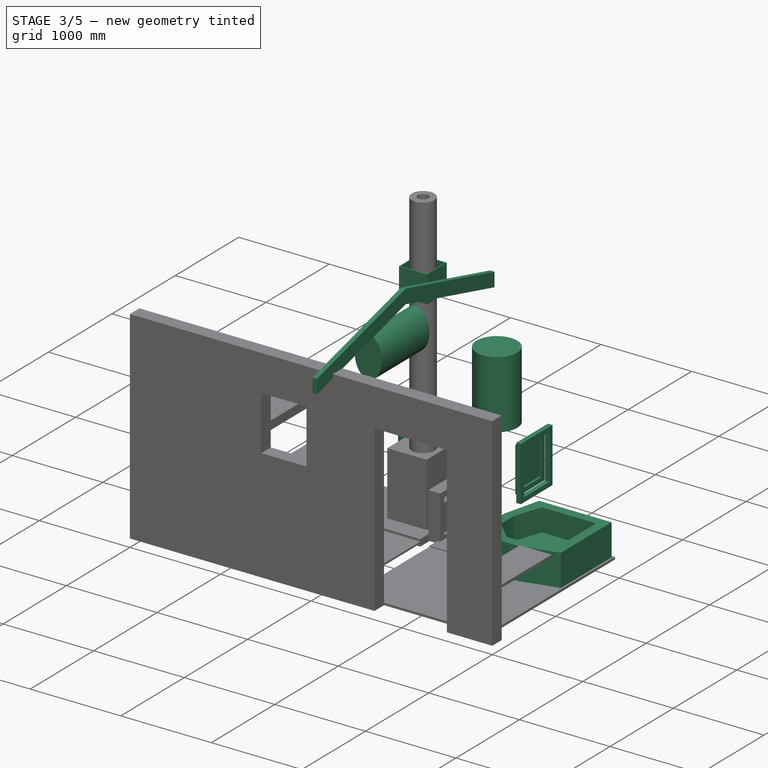
[diagram: stage 3 of 5 — iso view after this stage's code; geometry added in this stage tinted green]
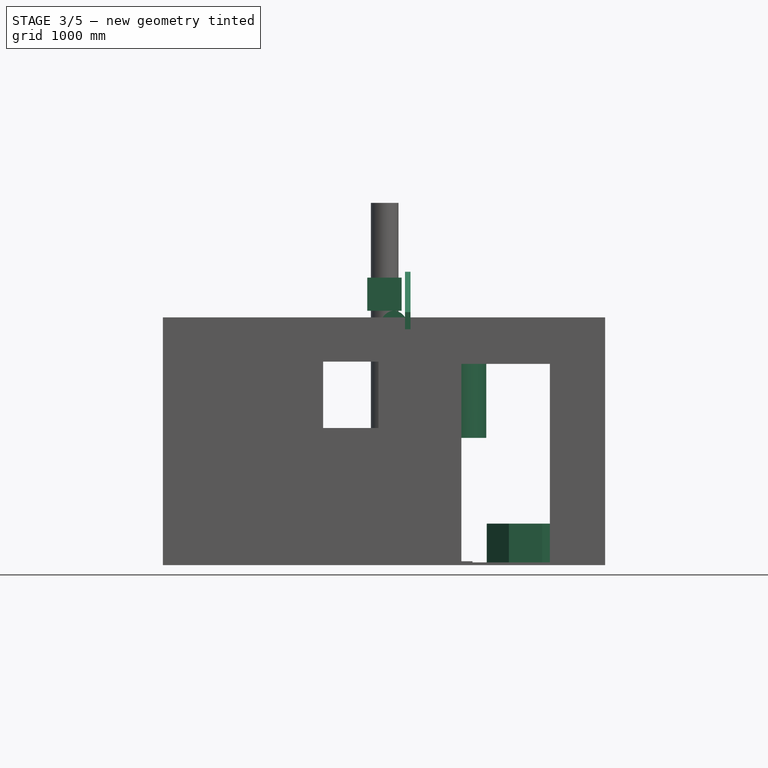
[diagram: stage 3 of 5 — front view after this stage's code; geometry added in this stage tinted green]
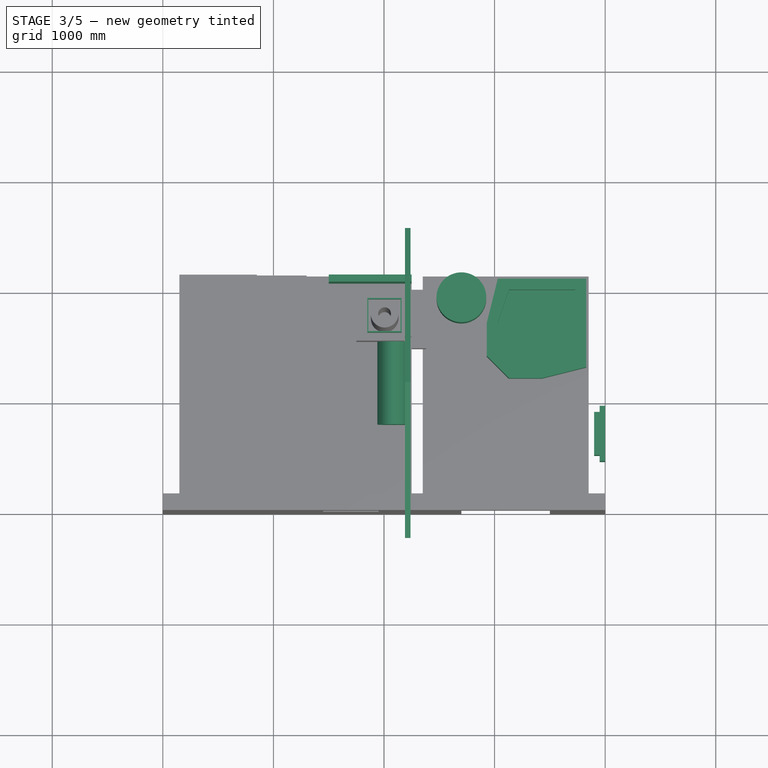
[diagram: stage 3 of 5 — top view after this stage's code; geometry added in this stage tinted green]
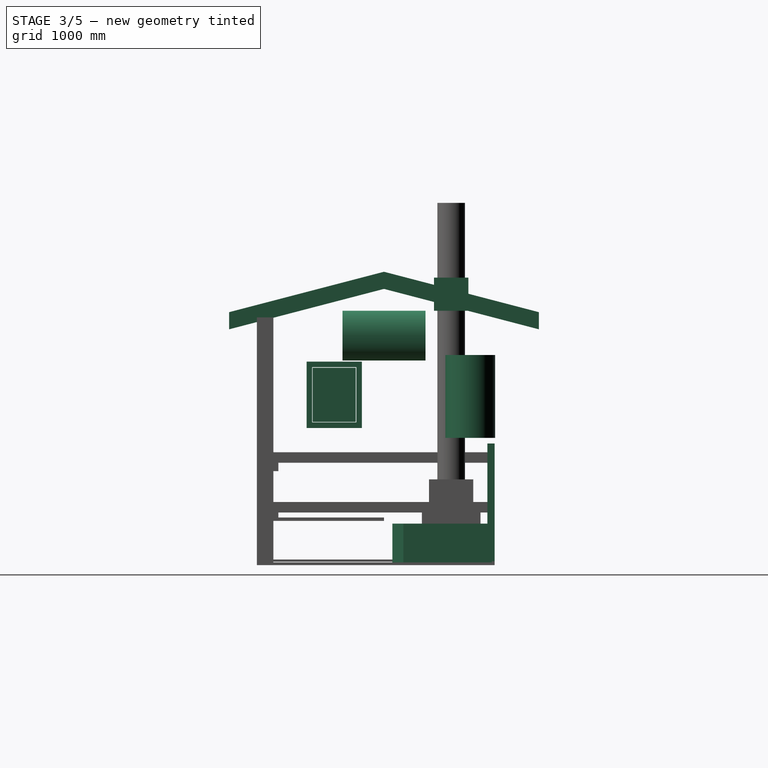
[diagram: stage 3 of 5 — right view after this stage's code; geometry added in this stage tinted green]
FEATURE [Part::FeaturePython] Structure001  # Arch/BIM object (typed FeaturePython)
  Base = -> Rectangle022
  FaceMaker = 0
  Height = 560
  HorizontalArea = 75000
  IfcRole = 0
  Length = 0
  MoveWithHost = false
  Nodes = (2) [(3925,250,0),(3925,250,560)]
  NodesOffset = 0
  Normal = (0,0,0)
  PerimeterLength = 1300
  Placement = pos=(0,0,1260) rot=(0,0,1;0rad)
  VerticalArea = 728000
  Width = 100
FEATURE [Part::FeaturePython] Structure004  # Arch/BIM object (typed FeaturePython)
  Base = -> Rectangle021
  FaceMaker = 0
  Height = 560
  HorizontalArea = 210000
  IfcRole = 0
  Length = 0
  MoveWithHost = false
  Nodes = (2) [(3925,1600,0),(3925,1600,560)]
  NodesOffset = 0
  Normal = (0,0,0)
  PerimeterLength = 3100
  Placement = pos=(0,0,1260) rot=(0,0,1;0rad)
  VerticalArea = 1.736e+06
  Width = 100
FEATURE [Part::Part2DObjectPython] Rectangle025  label="стена_брус_150х156"  # Draft 2D object (typed FeaturePython)
  ChamferSize = 0
  Columns = 1
  FilletRadius = 0
  Height = 2300
  Length = 150
  MakeFace = false
  Placement = pos=(3850,0,0) rot=(0,0,1;0rad)
  Rows = 1
FEATURE [Part::FeaturePython] Structure006  # Arch/BIM object (typed FeaturePython)
  Base = -> Rectangle025
  FaceMaker = 0
  Height = 1260
  HorizontalArea = 345000
  IfcRole = 0
  Length = 0
  MoveWithHost = false
  Nodes = (2) [(3925,1150,0),(3925,1150,1260)]
  NodesOffset = 0
  Normal = (0,0,0)
  PerimeterLength = 4900
  VerticalArea = 6160000
  Width = 100
FEATURE [Part::FeaturePython] Structure007  # Arch/BIM object (typed FeaturePython)
  Additions = -> [Structure001,Structure004,Structure006]
  Base = -> Rectangle025
  FaceMaker = 0
  Height = 420
  HorizontalArea = 420000
  IfcRole = 0
  Length = 0
  MoveWithHost = false
  Nodes = (2) [(3925,1150,0),(3925,1150,420)]
  NodesOffset = 0
  Normal = (0,0,0)
  PerimeterLength = 4900
  Placement = pos=(0,0,1820) rot=(0,0,1;0rad)
  VerticalArea = 1.0556e+07
  Width = 100
FEATURE [Part::Part2DObjectPython] Line027  # Draft 2D object (typed FeaturePython)
  ChamferSize = 0
  Closed = false
  End = (4000,2550,2193.36)
  FilletRadius = 0
  Length = 300
  MakeFace = false
  Placement = pos=(4000,2550,1893.36) rot=(0.57735,0.57735,0.57735;2.0944rad)
  Points = (2) [(0,0,0),(0,300,0)]
  Start = (4000,2550,1893.36)
  Subdivisions = 0
FEATURE [Part::Part2DObjectPython] Line028  # Draft 2D object (typed FeaturePython)
  ChamferSize = 0
  Closed = false
  End = (4000,1150,2693.36)
  FilletRadius = 0
  Length = 293.361
  MakeFace = false
  Placement = pos=(4000,1150,2400) rot=(0.57735,0.57735,0.57735;2.0944rad)
  Points = (2) [(0,0,0),(0,293.361,0)]
  Start = (4000,1150,2400)
  Subdivisions = 0
FEATURE [Part::Part2DObjectPython] Line029  # Draft 2D object (typed FeaturePython)
  ChamferSize = 0
  Closed = false
  End = (4000,-250,1893.36)
  FilletRadius = 0
  Length = 300
  MakeFace = false
  Placement = pos=(4000,-250,2193.36) rot=(0.57735,0.57735,0.57735;2.0944rad)
  Points = (2) [(0,0,0),(0,-300,0)]
  Start = (4000,-250,2193.36)
  Subdivisions = 0
FEATURE [Part::Part2DObjectPython] Wire002  label="стропило_50_150_в сборе"  # Draft 2D object (typed FeaturePython)
  ChamferSize = 0
  Closed = true
  End = (4000,-250,2287.26)
  FilletRadius = 0
  Length = 6097.45
  MakeFace = false
  Placement = pos=(4000,1150,2652.47) rot=(0.57735,0.57735,0.57735;2.0944rad)
  Points = (6) [(0,0,0),(1400,-365.224,0),(1400,-520.244,0),(1.13687e-12,-155.02,0),(-1400,-520.235,0),(-1400,-365.215,0)]
  Start = (4000,1150,2652.47)
  Subdivisions = 0
FEATURE [Part::FeaturePython] Structure023  label="Structure022"  # Arch/BIM object (typed FeaturePython)
  Base = -> Wire002
  FaceMaker = 0
  Height = 50
  HorizontalArea = 0
  IfcRole = 0
  Length = 0
  MoveWithHost = false
  Nodes = (2) [(4000,1150,2252.35),(4000,1150,2202.35)]
  NodesOffset = 0
  Normal = (0,0,0)
  PerimeterLength = 0
  VerticalArea = 883614
  Width = 100
FEATURE [Sketcher::SketchObject] Sketch001
  Placement = pos=(4000,450,1240) rot=(0.57735,0.57735,0.57735;2.0944rad)
  sketch-geometry (16):
    g0: LineSegment StartX=0 StartY=0 StartZ=0 EndX=500 EndY=0 EndZ=0
    g1: LineSegment StartX=500 StartY=0 StartZ=0 EndX=500 EndY=600 EndZ=0
    g2: LineSegment StartX=500 StartY=600 StartZ=0 EndX=0 EndY=600 EndZ=0
    g3: LineSegment StartX=0 StartY=600 StartZ=0 EndX=0 EndY=0 EndZ=0
    g4: LineSegment StartX=50 StartY=50 StartZ=0 EndX=450 EndY=50 EndZ=0
    g5: LineSegment StartX=450 StartY=50 StartZ=0 EndX=450 EndY=550 EndZ=0
    g6: LineSegment StartX=450 StartY=550 StartZ=0 EndX=50 EndY=550 EndZ=0
    g7: LineSegment StartX=50 StartY=550 StartZ=0 EndX=50 EndY=50 EndZ=0
    g8: LineSegment StartX=55 StartY=55 StartZ=0 EndX=445 EndY=55 EndZ=0
    g9: LineSegment StartX=445 StartY=55 StartZ=0 EndX=445 EndY=545 EndZ=0
    g10: LineSegment StartX=445 StartY=545 StartZ=0 EndX=55 EndY=545 EndZ=0
    g11: LineSegment StartX=55 StartY=545 StartZ=0 EndX=55 EndY=55 EndZ=0
    g12: LineSegment StartX=105 StartY=105 StartZ=0 EndX=395 EndY=105 EndZ=0
    g13: LineSegment StartX=395 StartY=105 StartZ=0 EndX=395 EndY=495 EndZ=0
    g14: LineSegment StartX=395 StartY=495 StartZ=0 EndX=105 EndY=495 EndZ=0
    g15: LineSegment StartX=105 StartY=495 StartZ=0 EndX=105 EndY=105 EndZ=0
  constraints (47):
    c: Coincident(g0,g1)
    c: Coincident(g1,g2)
    c: Coincident(g2,g3)
    c: Coincident(g3,g0)
    c: Horizontal(g0)
    c: Horizontal(g2)
    c: Vertical(g1)
    c: Vertical(g3)
    c: Coincident(g4,g5)
    c: Coincident(g5,g6)
    c: Coincident(g6,g7)
    c: Coincident(g7,g4)
    c: Horizontal(g4)
    c: Horizontal(g6)
    c: Vertical(g5)
    c: Vertical(g7)
    c: DistanceY(g1) = 600  'Height'
    c: DistanceX(g0) = 500  'Width'
    c: DistanceY(g6,g2) = 50  'Frame1'
    c: DistanceX(g2,g6) = 50  'Frame2'
    c: DistanceX(g4,g0) = 50  'Frame3'
    c: DistanceY(g0,g4) = 50  'Frame4'
    c: Coincident(g0,g-1)
    c: Coincident(g8,g9)
    c: Coincident(g9,g10)
    c: Coincident(g10,g11)
    c: Coincident(g11,g8)
    c: Horizontal(g8)
    c: Horizontal(g10)
    c: Vertical(g9)
    c: Vertical(g11)
    c: Coincident(g12,g13)
    c: Coincident(g13,g14)
    c: Coincident(g14,g15)
    c: Coincident(g15,g12)
    c: Horizontal(g12)
    c: Horizontal(g14)
    c: Vertical(g13)
    c: Vertical(g15)
    c: DistanceX(g8,g12) = 50  'Frame5'
    c: DistanceY(g8,g12) = 50  'Frame6'
    c: DistanceX(g14,g10) = 50  'Frame8'
    c: DistanceY(g14,g10) = 50  'Frame7'
    c: DistanceX(g4,g8) = 5
    c: DistanceY(g4,g8) = 5
    c: DistanceX(g10,g6) = 5
    c: DistanceY(g10,g6) = 5
FEATURE [Part::FeaturePython] Window001  # Arch/BIM object (typed FeaturePython)
  Area = 300000
  Base = -> Sketch001
  Frame = 50
  Height = 600
  HoleDepth = 0
  HoleWire = 0
  HorizontalArea = 0
  Hosts = -> [Structure007,Structure006]
  IfcRole = 160
  LouvreSpacing = 0
  LouvreWidth = 0
  MoveWithHost = true
  Normal = (-1,0,0)
  Opening = 0
  PerimeterLength = 0
  Preset = 2
  SymbolElevation = false
  SymbolPlan = false
  VerticalArea = 0
  Width = 500
  WindowParts = OuterFrame | Frame | Wire0,Wire1 | 0.0+V | 0.00+V | InnerFrame | Frame | Wire2,Wire3 | 0.00+V | 50.0+V | InnerGlass | Glass panel | Wire3 | 5.0 | 75.0+V
FEATURE [App::FeaturePython] Dimension008  # Draft dimension (typed FeaturePython)
  Diameter = false
  Dimline = (4200,2600,0)
  Direction = (0,0,0)
  Distance = 1500
  End = (3850,2150,0)
  Normal = (0,0,1)
  Start = (2350,2150,0)
FEATURE [App::FeaturePython] Dimension009  # Draft dimension (typed FeaturePython)
  Diameter = false
  Dimline = (1500,2400,0)
  Direction = (0,0,0)
  Distance = 1350
  End = (1500,2150,0)
  Normal = (0,0,1)
  Start = (150,2150,0)
FEATURE [App::FeaturePython] Dimension010  # Draft dimension (typed FeaturePython)
  Diameter = false
  Dimline = (4500,2400,0)
  Direction = (0,0,0)
  Distance = 2000
  End = (3850,150,0)
  Normal = (0,0,1)
  Start = (3850,2150,0)
FEATURE [App::FeaturePython] Dimension011  # Draft dimension (typed FeaturePython)
  Diameter = false
  Dimline = (1800,-300,0)
  Direction = (0,0,0)
  Distance = 2100
  End = (2250,150,0)
  Normal = (0,0,1)
  Start = (150,150,0)
FEATURE [App::DocumentObjectGroup] Group  label="Эскиз"
  Group = -> [Rectangle,Rectangle001,Rectangle002,Circle,Rectangle005,Rectangle006,Rectangle007,Dimension,Dimension001,Dimension002,Dimension003,Circle001,Rectangle008,Rectangle009,Circle002,Dimension004,Rectangle010,Rectangle011,Arc,Line003,Dimension005,Arc001,Line005,Rectangle012,Dimension008,Dimension009,Dimension010,Dimension011]
FEATURE [Part::Part2DObjectPython] Circle004  label="Трап"  # Draft 2D object (typed FeaturePython)
  FirstAngle = 0
  LastAngle = 0
  MakeFace = false
  Placement = pos=(800,1000,-40) rot=(0,0,1;0rad)
  Radius = 40
FEATURE [Part::Part2DObjectPython] Wire011  label="Уклоны для слива 001"  # Draft 2D object (typed FeaturePython)
  ChamferSize = 0
  Closed = true
  End = (1500,2150,0)
  FilletRadius = 0
  Length = 4018.48
  MakeFace = true
  Placement = pos=(150,2150,0) rot=(0,0,1;0rad)
  Points = (3) [(0,0,0),(650,-1150,-40),(1350,0,0)]
  Start = (150,2150,0)
  Subdivisions = 0
FEATURE [Part::Part2DObjectPython] Wire012  label="Уклоны для слива 018"  # Draft 2D object (typed FeaturePython)
  ChamferSize = 0
  Closed = true
  End = (150,150,0)
  FilletRadius = 0
  Length = 4392.38
  MakeFace = true
  Placement = pos=(150,2150,0) rot=(0,0,1;0rad)
  Points = (3) [(0,0,0),(650,-1150,-40),(-5.68434e-14,-2000,0)]
  Start = (150,2150,0)
  Subdivisions = 0
FEATURE [Part::Part2DObjectPython] Wire013  label="Уклоны для слива 016"  # Draft 2D object (typed FeaturePython)
  ChamferSize = 0
  Closed = true
  End = (2200,150,0)
  FilletRadius = 0
  Length = 4759.12
  MakeFace = true
  Placement = pos=(150,150,0) rot=(0,0,1;0rad)
  Points = (3) [(0,0,0),(650,850,-40),(2050,-2.84217e-13,0)]
  Start = (150,150,0)
  Subdivisions = 0
FEATURE [Part::Part2DObjectPython] Wire014  label="Уклоны для слива 017"  # Draft 2D object (typed FeaturePython)
  ChamferSize = 0
  Closed = true
  End = (1500,1365,0)
  FilletRadius = 0
  Length = 2922.34
  MakeFace = true
  Placement = pos=(800,1000,-40) rot=(0,0,1;0rad)
  Points = (3) [(0,0,0),(700,1150,40),(700,365,40)]
  Start = (800,1000,-40)
  Subdivisions = 0
FEATURE [Part::Part2DObjectPython] Wire015  label="Уклоны для слива 019"  # Draft 2D object (typed FeaturePython)
  ChamferSize = 0
  Closed = true
  End = (2200,1365,0)
  FilletRadius = 0
  Length = 2937.81
  MakeFace = true
  Placement = pos=(800,1000,-40) rot=(0,0,1;0rad)
  Points = (3) [(0,0,0),(700,365,40),(1400,365,40)]
  Start = (800,1000,-40)
  Subdivisions = 0
  Support = -> [Wire014]
FEATURE [Part::Part2DObjectPython] Wire016  label="Уклоны для слива 020"  # Draft 2D object (typed FeaturePython)
  ChamferSize = 0
  Closed = true
  End = (2200,150,0)
  FilletRadius = 0
  Length = 4300.67
  MakeFace = true
  Placement = pos=(800,1000,-40) rot=(0,0,1;0rad)
  Points = (3) [(0,0,0),(1400,365,40),(1400,-850,40)]
  Start = (800,1000,-40)
  Subdivisions = 0
FEATURE [Part::Part2DObjectPython] Ellipse  # Draft 2D object (typed FeaturePython)
  FirstAngle = 0
  LastAngle = 0
  MajorRadius = 225
  MakeFace = true
  MinorRadius = 150
  Placement = pos=(4650,1625,0) rot=(0,0,1;1.5708rad)
FEATURE [Part::FeaturePython] Structure039  label="бак водяной 100л"  # Arch/BIM object (typed FeaturePython)
  Base = -> Ellipse
  FaceMaker = 0
  Height = 750
  HorizontalArea = 892433
  IfcRole = 0
  Length = 0
  MoveWithHost = false
  Nodes = (2) [(-1625,4650,0),(-1625,4650,750)]
  NodesOffset = 0
  Normal = (0,0,0)
  PerimeterLength = 3880.45
  Placement = pos=(-2560,1525,450) rot=(1,0,0;1.5708rad)
  VerticalArea = 212058
  Width = 100
FEATURE [Part::Part2DObjectPython] Circle005  # Draft 2D object (typed FeaturePython)
  FirstAngle = 0
  LastAngle = 0
  MakeFace = false
  Placement = pos=(5000,1000,0) rot=(0,0,1;0rad)
  Radius = 225
FEATURE [Part::FeaturePython] Structure040  label="водогрей 80л"  # Arch/BIM object (typed FeaturePython)
  Base = -> Circle005
  FaceMaker = 0
  Height = 750
  HorizontalArea = 159043
  IfcRole = 0
  Length = 0
  MoveWithHost = false
  Nodes = (2) [(5000,1000,0),(5000,1000,750)]
  NodesOffset = 0
  Normal = (0,0,0)
  PerimeterLength = 1413.72
  Placement = pos=(-2300,930,1150) rot=(0,0,1;0rad)
  VerticalArea = 1.06029e+06
  Width = 100
FEATURE [Part::Part2DObjectPython] Wire017  # Draft 2D object (typed FeaturePython)
  ChamferSize = 0
  Closed = true
  End = (3829.34,1325.39,0)
  FilletRadius = 0
  Length = 3307.46
  MakeFace = false
  Placement = pos=(3829.34,2125.39,0) rot=(0,0,1;0rad)
  Points = (7) [(0,0,0),(-800,0,0),(-900,-400,0),(-900,-700,0),(-700,-900,0),(-400,-900,0),(0,-800,0)]
  Start = (3829.34,2125.39,0)
  Subdivisions = 0
  Support = -> [Structure007]
FEATURE [Part::Part2DObjectPython] Wire018  # Draft 2D object (typed FeaturePython)
  ChamferSize = 0
  Closed = true
  End = (3129.34,2025.39,0)
  FilletRadius = 0
  Length = 2515.3
  MakeFace = false
  Placement = pos=(3729.34,2025.39,0) rot=(0,0,1;0rad)
  Points = (7) [(0,0,0),(0,-600,0),(-300,-700,0),(-500,-700,0),(-700,-500,0),(-700,-300,0),(-600,6.82121e-13,0)]
  Start = (3729.34,2025.39,0)
  Subdivisions = 0
FEATURE [Part::FeaturePython] Structure042  label="Structure039"  # Arch/BIM object (typed FeaturePython)
  Base = -> Wire018
  FaceMaker = 0
  Height = 250
  HorizontalArea = 440000
  IfcRole = 0
  Length = 0
  MoveWithHost = false
  Nodes = (2) [(3394.49,1690.54,0),(3394.49,1690.54,-250)]
  NodesOffset = 0
  Normal = (0,0,0)
  PerimeterLength = 2515.3
  Placement = pos=(0,0,375) rot=(0,0,1;0rad)
  VerticalArea = 628825
  Width = 100
FEATURE [Part::FeaturePython] Structure041  label="поддон душевой"  # Arch/BIM object (typed FeaturePython)
  Base = -> Wire017
  FaceMaker = 0
  Height = 350
  HorizontalArea = 750000
  IfcRole = 0
  Length = 0
  MoveWithHost = false
  Nodes = (2) [(3392.23,1688.27,0),(3392.23,1688.27,350)]
  NodesOffset = 0
  Normal = (0,0,0)
  PerimeterLength = 3307.46
  Placement = pos=(0,0,25) rot=(0,0,1;0rad)
  Subtractions = -> [Structure042]
  VerticalArea = 1.78644e+06
  Width = 100
FEATURE [Part::FeaturePython] Array002  label="стропило_50_150_в сборе003"  # Draft array (typed FeaturePython)
  Angle = 360
  ArrayType = 0
  Axis = (0,0,1)
  Base = -> Structure023
  Center = (0,0,0)
  Fuse = false
  IntervalAxis = (0,0,0)
  IntervalX = (-635,0,0)
  IntervalY = (0,0,0)
  IntervalZ = (0,0,0)
  NumberPolar = 1
  NumberX = 1
  NumberY = 0
  NumberZ = 0
  Placement = pos=(-1760,0,0) rot=(0,0,1;0rad)
FEATURE [App::GeometryPython] BuildingPart005  label="Кровля"  # Arch/BIM object (typed FeaturePython)
  Area = 0
  Group = -> [Structure022,Array,Array001,Roof,Rectangle060,Array002]
  Height = 0
  IfcRole = 0
  LevelOffset = 0
FEATURE [Part::Part2DObjectPython] Rectangle068  label="коробка для дымохода"  # Draft 2D object (typed FeaturePython)
  ChamferSize = 0
  Columns = 1
  FilletRadius = 0
  Height = 300
  Length = 300
  MakeFace = false
  Placement = pos=(1853.96,1607.5,0) rot=(0,0,1;0rad)
  Rows = 1
FEATURE [Part::FeaturePython] Wall  label="коробка для дымохода001"  # Arch/BIM object (typed FeaturePython)
  Align = 2
  Base = -> Rectangle068
  BlockHeight = 0
  BlockLength = 0
  CountBroken = 0
  CountEntire = 0
  Face = 0
  Height = 300
  HorizontalArea = 12000
  IfcRole = 156
  Joint = 0
  Length = 1200
  MakeBlocks = false
  MoveWithHost = false
  Normal = (0,0,0)
  OffsetFirst = 0
  OffsetSecond = 0
  PerimeterLength = 1240
  Placement = pos=(0,0,2300) rot=(0,0,1;0rad)
  VerticalArea = 720000
  Width = 10
FEATURE [Part::Part2DObjectPython] Rectangle069  # Draft 2D object (typed FeaturePython)
  ChamferSize = 0
  Columns = 1
  FilletRadius = 0
  Height = 785
  Length = 750
  MakeFace = false
  Placement = pos=(1500,1365,0) rot=(0,0,1;0rad)
  Rows = 1
FEATURE [Part::FeaturePython] Structure043  label="осн. под печь (шифер 10мм + кирпич 65 мм)"  # Arch/BIM object (typed FeaturePython)
  Base = -> Rectangle069
  FaceMaker = 0
  Height = 75
  HorizontalArea = 588750
  IfcRole = 0
  Length = 0
  MoveWithHost = false
  Nodes = (2) [(1875,1757.5,0),(1875,1757.5,75)]
  NodesOffset = 0
  Normal = (0,0,0)
  PerimeterLength = 3070
  VerticalArea = 230250
  Width = 100
FEATURE [Part::Part2DObjectPython] Wire019  # Draft 2D object (typed FeaturePython)
  ChamferSize = 0
  Closed = true
  End = (2250,1500,0)
  FilletRadius = 0
  Length = 2670
  MakeFace = false
  Placement = pos=(2250,2025,0) rot=(0,0,1;0rad)
  Points = (9) [(0,-25,0),(100,-25,0),(100,125,0),(550,125,0),(550,125,0),(550,-660,0),(100,-660,0),(100,-525,0),(0,-525,0)]
  Start = (2250,2000,0)
  Subdivisions = 0
FEATURE [Part::FeaturePython] Structure044  label="предтопочный лист минерит 10мм"  # Arch/BIM object (typed FeaturePython)
  Base = -> Wire019
  FaceMaker = 0
  Height = 10
  HorizontalArea = 403250
  IfcRole = 0
  Length = 0
  MoveWithHost = false
  Nodes = (2) [(2540.9,1756.57,0),(2540.9,1756.57,10)]
  NodesOffset = 0
  Normal = (0,0,1)
  PerimeterLength = 2670
  Placement = pos=(0,0,25) rot=(0,0,1;0rad)
  VerticalArea = 26700
  Width = 100
FEATURE [Part::Part2DObjectPython] Rectangle070  # Draft 2D object (typed FeaturePython)
  ChamferSize = 0
  Columns = 1
  FilletRadius = 0
  Height = 65
  Length = 750
  MakeFace = false
  Placement = pos=(1500,2085,0) rot=(0,0,1;0rad)
  Rows = 1
FEATURE [Part::FeaturePython] Structure045  label="экран печи кирпич"  # Arch/BIM object (typed FeaturePython)
  Base = -> Rectangle070
  FaceMaker = 0
  Height = 1100
  HorizontalArea = 48750
  IfcRole = 0
  Length = 0
  MoveWithHost = false
  Nodes = (2) [(1875,2117.5,0),(1875,2117.5,1100)]
  NodesOffset = 0
  Normal = (0,0,0)
  PerimeterLength = 1630
  VerticalArea = 1793000
  Width = 100
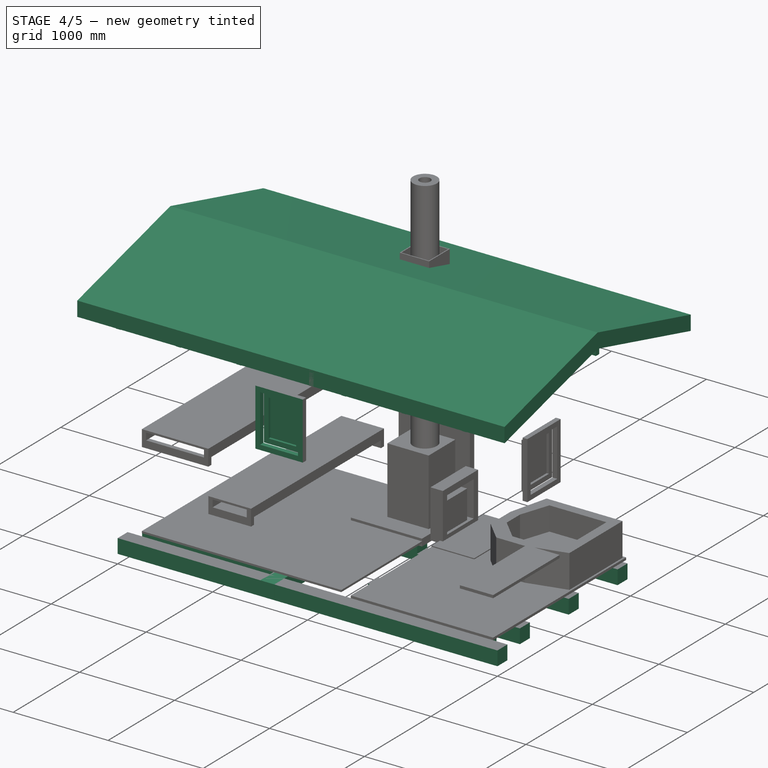
[diagram: stage 4 of 5 — iso view after this stage's code; geometry added in this stage tinted green]
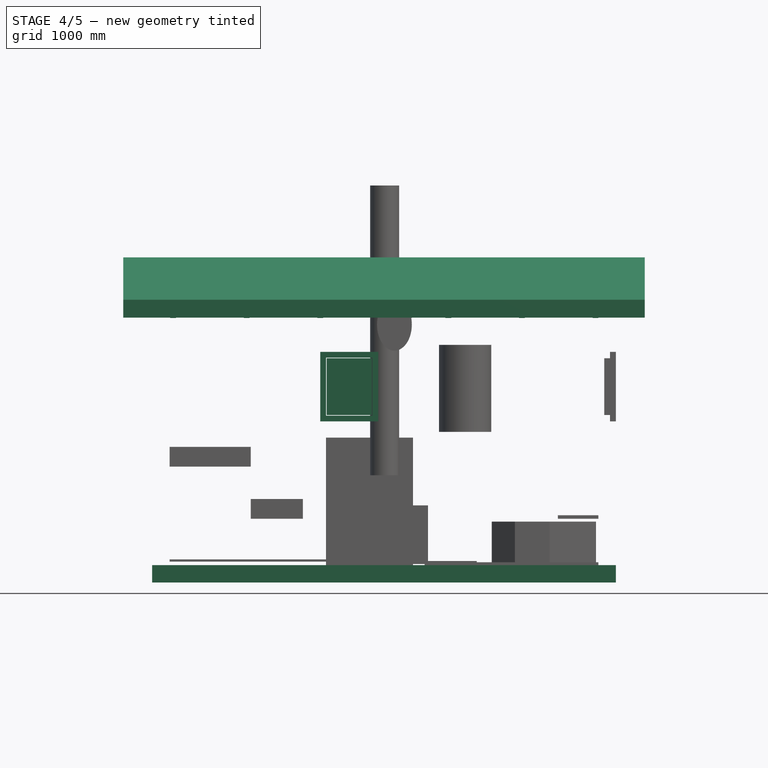
[diagram: stage 4 of 5 — front view after this stage's code; geometry added in this stage tinted green]
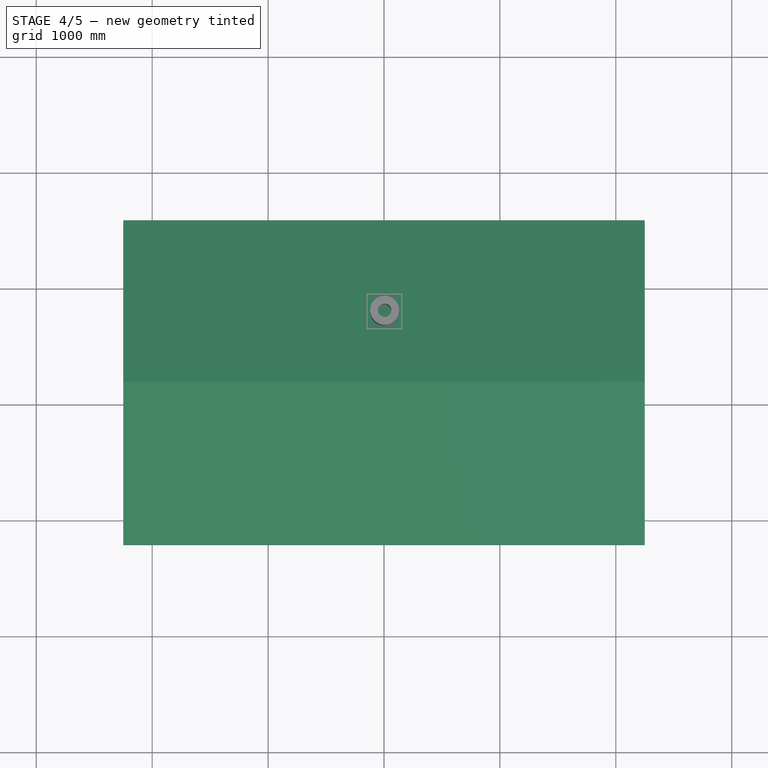
[diagram: stage 4 of 5 — top view after this stage's code; geometry added in this stage tinted green]
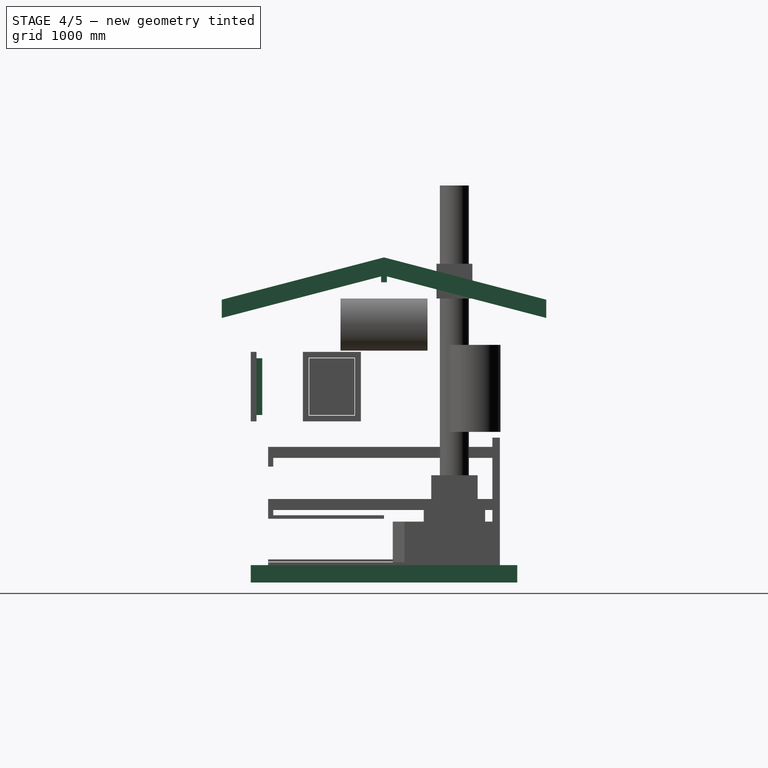
[diagram: stage 4 of 5 — right view after this stage's code; geometry added in this stage tinted green]
FEATURE [Part::Part2DObjectPython] Rectangle037  label="конёк_доска 50х150"  # Draft 2D object (typed FeaturePython)
  ChamferSize = 0
  Columns = 1
  FilletRadius = 0
  Height = 50
  Length = 4500
  MakeFace = false
  Placement = pos=(-250,1125,0) rot=(0,0,1;0rad)
  Rows = 1
FEATURE [Part::FeaturePython] Structure022  label="конёк_доска 50х151"  # Arch/BIM object (typed FeaturePython)
  Base = -> Rectangle037
  FaceMaker = 0
  Height = 150
  HorizontalArea = 225000
  IfcRole = 0
  Length = 0
  MoveWithHost = false
  Nodes = (2) [(2000,1150,0),(2000,1150,150)]
  NodesOffset = 0
  Normal = (0,0,0)
  PerimeterLength = 9100
  Placement = pos=(0,0,2440) rot=(0,0,1;0rad)
  VerticalArea = 1365000
  Width = 100
FEATURE [Part::Part2DObjectPython] Line030  # Draft 2D object (typed FeaturePython)
  ChamferSize = 0
  Closed = false
  End = (4000,1650,2512.47)
  FilletRadius = 0
  Length = 500
  MakeFace = false
  Placement = pos=(4000,1150,2512.47) rot=(0.57735,0.57735,0.57735;2.0944rad)
  Points = (2) [(0,0,0),(500,0,0)]
  Start = (4000,1150,2512.47)
  Subdivisions = 0
FEATURE [Part::FeaturePython] Array  label="стропило_50_150_в сборе001"  # Draft array (typed FeaturePython)
  Angle = 360
  ArrayType = 0
  Axis = (0,0,1)
  Base = -> Structure023
  Center = (0,0,0)
  Fuse = false
  IntervalAxis = (0,0,0)
  IntervalX = (-635,0,0)
  IntervalY = (0,0,0)
  IntervalZ = (0,0,0)
  NumberPolar = 1
  NumberX = 3
  NumberY = 0
  NumberZ = 0
  Placement = pos=(-150,0,0) rot=(0,0,1;0rad)
FEATURE [Part::FeaturePython] Array001  label="стропило_50_150_в сборе002"  # Draft array (typed FeaturePython)
  Angle = 360
  ArrayType = 0
  Axis = (0,0,1)
  Base = -> Structure023
  Center = (0,0,0)
  Fuse = false
  IntervalAxis = (0,0,0)
  IntervalX = (-635,0,0)
  IntervalY = (0,0,0)
  IntervalZ = (0,0,0)
  NumberPolar = 1
  NumberX = 3
  NumberY = 0
  NumberZ = 0
  Placement = pos=(-2525,0,0) rot=(0,0,1;0rad)
FEATURE [Part::Part2DObjectPython] Wire003  label="мауэрлат"  # Draft 2D object (typed FeaturePython)
  ChamferSize = 0
  Closed = true
  End = (0,4.7e-15,2240)
  FilletRadius = 0
  Length = 12600
  MakeFace = false
  Placement = pos=(4000,1.14e-13,2240) rot=(0,0,1;0rad)
  Points = (4) [(0,0,0),(0,2300,0),(-4000,2300,0),(-4000,-1.09298e-13,0)]
  Start = (4000,1.14e-13,2240)
  Subdivisions = 0
FEATURE [Part::FeaturePython] Roof  label="Крыша"  # Arch/BIM object (typed FeaturePython)
  Angles = [90,14.6,90,14.6]
  Base = -> Wire003
  BorderLength = 14786.9
  Face = 0
  Flip = false
  Heights = [0,299.553,0,299.553]
  HorizontalArea = 1.26e+07
  IdRel = [0,0,0,0]
  IfcRole = 111
  MoveWithHost = false
  Overhang = [250,250,250,250]
  PerimeterLength = 14600
  Placement = pos=(0,0,-40) rot=(0,0,1;0rad)
  RidgeLength = 4500
  Runs = [250,1150,250,1150]
  Thickness = [150,150,150,150]
  VerticalArea = 2.26308e+06
FEATURE [Part::FeaturePython] Structure025  label="Structure024"  # Arch/BIM object (typed FeaturePython)
  Base = -> Rectangle044
  FaceMaker = 0
  Height = 150
  HorizontalArea = 600000
  IfcRole = 0
  Length = 0
  MoveWithHost = false
  Nodes = (2) [(2000,75,0),(2000,75,150)]
  NodesOffset = 0
  Normal = (0,0,0)
  PerimeterLength = 8300
  Placement = pos=(0,0,-150) rot=(0,0,1;0rad)
  VerticalArea = 1.245e+06
  Width = 100
FEATURE [Part::Part2DObjectPython] Rectangle045  label="обвязка_брус_150х150_006"  # Draft 2D object (typed FeaturePython)
  ChamferSize = 0
  Columns = 1
  FilletRadius = 0
  Height = 2300
  Length = 150
  MakeFace = false
  Placement = pos=(1500,0,0) rot=(0,0,1;0rad)
  Rows = 1
FEATURE [Part::FeaturePython] Structure029  label="Structure028"  # Arch/BIM object (typed FeaturePython)
  Base = -> Rectangle045
  FaceMaker = 0
  Height = 150
  HorizontalArea = 345000
  IfcRole = 0
  Length = 0
  MoveWithHost = false
  Nodes = (2) [(1575,1150,0),(1575,1150,150)]
  NodesOffset = 0
  Normal = (0,0,0)
  PerimeterLength = 4900
  Placement = pos=(0,0,-150) rot=(0,0,1;0rad)
  VerticalArea = 735000
  Width = 100
FEATURE [Part::Part2DObjectPython] Rectangle046  label="лаги_доска_50х150_001"  # Draft 2D object (typed FeaturePython)
  ChamferSize = 0
  Columns = 1
  FilletRadius = 0
  Height = 50
  Length = 1450
  MakeFace = false
  Placement = pos=(100,2025,0) rot=(0,0,1;0rad)
  Rows = 1
FEATURE [Part::Part2DObjectPython] Rectangle047  label="лаги_доска_50х150_012"  # Draft 2D object (typed FeaturePython)
  ChamferSize = 0
  Columns = 1
  FilletRadius = 0
  Height = 50
  Length = 1450
  MakeFace = false
  Placement = pos=(100,1425,0) rot=(0,0,1;0rad)
  Rows = 1
FEATURE [Part::Part2DObjectPython] Rectangle048  label="лаги_доска_50х150_011"  # Draft 2D object (typed FeaturePython)
  ChamferSize = 0
  Columns = 1
  FilletRadius = 0
  Height = 50
  Length = 1450
  MakeFace = false
  Placement = pos=(100,225,0) rot=(0,0,1;0rad)
  Rows = 1
FEATURE [Part::Part2DObjectPython] Rectangle049  label="лаги_доска_50х150_010"  # Draft 2D object (typed FeaturePython)
  ChamferSize = 0
  Columns = 1
  FilletRadius = 0
  Height = 50
  Length = 1450
  MakeFace = false
  Placement = pos=(100,825,0) rot=(0,0,1;0rad)
  Rows = 1
FEATURE [Part::Part2DObjectPython] Line031  # Draft 2D object (typed FeaturePython)
  ChamferSize = 0
  Closed = false
  End = (-100,250,0)
  FilletRadius = 0
  Length = 300
  MakeFace = false
  Placement = pos=(200,250,0) rot=(0,0,1;0rad)
  Points = (2) [(0,0,0),(-300,0,0)]
  Start = (200,250,0)
  Subdivisions = 0
FEATURE [Part::FeaturePython] Structure030  label="Structure029"  # Arch/BIM object (typed FeaturePython)
  Base = -> Rectangle046
  FaceMaker = 0
  Height = 150
  HorizontalArea = 72500
  IfcRole = 0
  Length = 0
  MoveWithHost = false
  Nodes = (2) [(825,2050,0),(825,2050,150)]
  NodesOffset = 0
  Normal = (0,0,0)
  PerimeterLength = 3000
  Placement = pos=(0,0,-150) rot=(0,0,1;0rad)
  VerticalArea = 450000
  Width = 100
FEATURE [Part::FeaturePython] Structure031  label="Structure030"  # Arch/BIM object (typed FeaturePython)
  Base = -> Rectangle049
  FaceMaker = 0
  Height = 150
  HorizontalArea = 72500
  IfcRole = 0
  Length = 0
  MoveWithHost = false
  Nodes = (2) [(825,850,0),(825,850,150)]
  NodesOffset = 0
  Normal = (0,0,0)
  PerimeterLength = 3000
  Placement = pos=(0,0,-150) rot=(0,0,1;0rad)
  VerticalArea = 450000
  Width = 100
FEATURE [Part::FeaturePython] Structure032  label="Structure031"  # Arch/BIM object (typed FeaturePython)
  Base = -> Rectangle048
  FaceMaker = 0
  Height = 150
  HorizontalArea = 72500
  IfcRole = 0
  Length = 0
  MoveWithHost = false
  Nodes = (2) [(825,250,0),(825,250,150)]
  NodesOffset = 0
  Normal = (0,0,0)
  PerimeterLength = 3000
  Placement = pos=(0,0,-150) rot=(0,0,1;0rad)
  VerticalArea = 450000
  Width = 100
FEATURE [Part::FeaturePython] Structure033  label="Structure032"  # Arch/BIM object (typed FeaturePython)
  Base = -> Rectangle047
  FaceMaker = 0
  Height = 150
  HorizontalArea = 72500
  IfcRole = 0
  Length = 0
  MoveWithHost = false
  Nodes = (2) [(825,1450,0),(825,1450,150)]
  NodesOffset = 0
  Normal = (0,0,0)
  PerimeterLength = 3000
  Placement = pos=(0,0,-150) rot=(0,0,1;0rad)
  VerticalArea = 450000
  Width = 100
FEATURE [Part::Part2DObjectPython] Rectangle050  label="лаги_брус_150х150_013"  # Draft 2D object (typed FeaturePython)
  ChamferSize = 0
  Columns = 1
  FilletRadius = 0
  Height = 150
  Length = 1600
  MakeFace = false
  Placement = pos=(2300,1950,0) rot=(0,0,1;0rad)
  Rows = 1
FEATURE [Part::Part2DObjectPython] Rectangle051  label="лаги_брус_150х150_014"  # Draft 2D object (typed FeaturePython)
  ChamferSize = 0
  Columns = 1
  FilletRadius = 0
  Height = 150
  Length = 1600
  MakeFace = false
  Placement = pos=(2300,480,0) rot=(0,0,1;0rad)
  Rows = 1
FEATURE [Part::Part2DObjectPython] Rectangle052  label="лаги_брусок_50х40_015"  # Draft 2D object (typed FeaturePython)
  ChamferSize = 0
  Columns = 1
  FilletRadius = 0
  Height = 50
  Length = 1500
  MakeFace = false
  Placement = pos=(2350,150,0) rot=(0,0,1;0rad)
  Rows = 1
FEATURE [Part::Part2DObjectPython] Rectangle053  label="лаги_брус_150х150_016"  # Draft 2D object (typed FeaturePython)
  ChamferSize = 0
  Columns = 1
  FilletRadius = 0
  Height = 150
  Length = 1600
  MakeFace = false
  Placement = pos=(2300,1215,0) rot=(0,0,1;0rad)
  Rows = 1
FEATURE [Part::Part2DObjectPython] Line032  # Draft 2D object (typed FeaturePython)
  ChamferSize = 0
  Closed = false
  End = (3900,250,0)
  FilletRadius = 0
  Length = 2350
  MakeFace = false
  Placement = pos=(1550,250,0) rot=(0,0,1;0rad)
  Points = (2) [(0,0,0),(2350,0,0)]
  Start = (1550,250,0)
  Subdivisions = 0
FEATURE [Part::Part2DObjectPython] Rectangle054  label="обвязка_брус_150х150_007"  # Draft 2D object (typed FeaturePython)
  ChamferSize = 0
  Columns = 1
  FilletRadius = 0
  Height = 150
  Length = 550
  MakeFace = false
  Placement = pos=(1650,1365,0) rot=(0,0,1;0rad)
  Rows = 1
FEATURE [Part::FeaturePython] Structure034  label="Structure033"  # Arch/BIM object (typed FeaturePython)
  Base = -> Rectangle054
  FaceMaker = 0
  Height = 150
  HorizontalArea = 82500
  IfcRole = 0
  Length = 0
  MoveWithHost = false
  Nodes = (2) [(1925,1440,0),(1925,1440,150)]
  NodesOffset = 0
  Normal = (0,0,0)
  PerimeterLength = 1400
  Placement = pos=(0,0,-150) rot=(0,0,1;0rad)
  VerticalArea = 210000
  Width = 100
FEATURE [App::GeometryPython] BuildingPart003  label="обвязка_брус_150х150_в сборе"  # Arch/BIM object (typed FeaturePython)
  Area = 0
  Group = -> [Structure024,Structure025,Structure027,Structure026,Structure028,Structure029,Structure034]
  Height = 0
  IfcRole = 0
  LevelOffset = 0
FEATURE [Part::FeaturePython] Structure035  label="Structure034"  # Arch/BIM object (typed FeaturePython)
  Base = -> Rectangle050
  FaceMaker = 0
  Height = 150
  HorizontalArea = 240000
  IfcRole = 0
  Length = 0
  MoveWithHost = false
  Nodes = (2) [(3100,2025,0),(3100,2025,150)]
  NodesOffset = 0
  Normal = (0,0,0)
  PerimeterLength = 3500
  Placement = pos=(0,0,-150) rot=(0,0,1;0rad)
  VerticalArea = 525000
  Width = 100
FEATURE [Part::FeaturePython] Structure036  label="Structure035"  # Arch/BIM object (typed FeaturePython)
  Base = -> Rectangle052
  FaceMaker = 0
  Height = 50
  HorizontalArea = 75000
  IfcRole = 0
  Length = 0
  MoveWithHost = false
  Nodes = (2) [(3100,175,0),(3100,175,50)]
  NodesOffset = 0
  Normal = (0,0,0)
  PerimeterLength = 3100
  Placement = pos=(0,0,-50) rot=(0,0,1;0rad)
  VerticalArea = 155000
  Width = 100
FEATURE [Part::FeaturePython] Structure037  label="Structure036"  # Arch/BIM object (typed FeaturePython)
  Base = -> Rectangle051
  FaceMaker = 0
  Height = 150
  HorizontalArea = 240000
  IfcRole = 0
  Length = 0
  MoveWithHost = false
  Nodes = (2) [(3100,555,0),(3100,555,150)]
  NodesOffset = 0
  Normal = (0,0,0)
  PerimeterLength = 3500
  Placement = pos=(0,0,-150) rot=(0,0,1;0rad)
  VerticalArea = 525000
  Width = 100
FEATURE [Part::FeaturePython] Structure038  label="Structure037"  # Arch/BIM object (typed FeaturePython)
  Base = -> Rectangle053
  FaceMaker = 0
  Height = 150
  HorizontalArea = 240000
  IfcRole = 0
  Length = 0
  MoveWithHost = false
  Nodes = (2) [(3100,1290,0),(3100,1290,150)]
  NodesOffset = 0
  Normal = (0,0,0)
  PerimeterLength = 3500
  Placement = pos=(0,0,-150) rot=(0,0,1;0rad)
  VerticalArea = 525000
  Width = 100
FEATURE [App::GeometryPython] BuildingPart004  label="лаги_доска_50х150"  # Arch/BIM object (typed FeaturePython)
  Area = 0
  Group = -> [Structure030,Structure031,Structure033,Structure032,Structure035,Structure036,Structure037,Structure038]
  Height = 0
  IfcRole = 0
  LevelOffset = 0
FEATURE [Part::Part2DObjectPython] Rectangle060  label="скат_кровли 4.5х1.45 м"  # Draft 2D object (typed FeaturePython)
  ChamferSize = 0
  Columns = 1
  FilletRadius = 0
  Height = 4500
  Length = 1446.72
  MakeFace = false
  Placement = pos=(4250,-250,2289.89) rot=(0.126051,-0.126051,0.983983;1.58694rad)
  Rows = 1
  Support = -> [Roof]
FEATURE [Part::Part2DObjectPython] Rectangle061  # Draft 2D object (typed FeaturePython)
  ChamferSize = 0
  Columns = 1
  FilletRadius = 0
  Height = 2000
  Length = 1350
  MakeFace = false
  Placement = pos=(150,150,0) rot=(0,0,1;0rad)
  Rows = 1
FEATURE [Part::Part2DObjectPython] Rectangle062  # Draft 2D object (typed FeaturePython)
  ChamferSize = 0
  Columns = 1
  FilletRadius = 0
  Height = 2000
  Length = 3700
  MakeFace = false
  Placement = pos=(150,150,0) rot=(0,0,1;0rad)
  Rows = 1
FEATURE [Part::Part2DObjectPython] Rectangle063  # Draft 2D object (typed FeaturePython)
  ChamferSize = 0
  Columns = 1
  FilletRadius = 0
  Height = 600
  Length = 500
  MakeFace = false
  Placement = pos=(4000,450,1240) rot=(0.57735,0.57735,0.57735;2.0944rad)
  Rows = 1
  Support = -> [Structure007]
FEATURE [Part::Part2DObjectPython] Rectangle064  # Draft 2D object (typed FeaturePython)
  ChamferSize = 0
  Columns = 1
  FilletRadius = 0
  Height = 600
  Length = 500
  MakeFace = true
  Placement = pos=(1450,-4.6e-14,1240) rot=(1,0,0;1.5708rad)
  Rows = 1
FEATURE [Part::Part2DObjectPython] Rectangle065  # Draft 2D object (typed FeaturePython)
  ChamferSize = 0
  Columns = 1
  FilletRadius = 0
  Height = 1700
  Length = 700
  MakeFace = true
  Placement = pos=(2750,-2.45e-13,0) rot=(1,0,0;1.5708rad)
  Rows = 1
  Support = -> [Structure025]
FEATURE [App::DocumentObjectGroup] Construction
  Group = -> [Line,Line001,Line002,Line004,Line010,Line011,Line012,Line013,Line014,Line015,Line016,Line017,Line018,Line019,Line020,Line021,Rectangle033,Rectangle035,Line023,Line024,Line025,Line027,Line028,Line029,Line030,Line031,Line032,Rectangle061,Rectangle062,Rectangle063,Rectangle064,Rectangle065]
FEATURE [Sketcher::SketchObject] Sketch
  Placement = pos=(1450,-2.45e-13,1240) rot=(1,0,0;1.5708rad)
  sketch-geometry (16):
    g0: LineSegment StartX=0 StartY=0 StartZ=0 EndX=500 EndY=0 EndZ=0
    g1: LineSegment StartX=500 StartY=0 StartZ=0 EndX=500 EndY=600 EndZ=0
    g2: LineSegment StartX=500 StartY=600 StartZ=0 EndX=0 EndY=600 EndZ=0
    g3: LineSegment StartX=0 StartY=600 StartZ=0 EndX=0 EndY=0 EndZ=0
    g4: LineSegment StartX=50 StartY=50 StartZ=0 EndX=450 EndY=50 EndZ=0
    g5: LineSegment StartX=450 StartY=50 StartZ=0 EndX=450 EndY=550 EndZ=0
    g6: LineSegment StartX=450 StartY=550 StartZ=0 EndX=50 EndY=550 EndZ=0
    g7: LineSegment StartX=50 StartY=550 StartZ=0 EndX=50 EndY=50 EndZ=0
    g8: LineSegment StartX=55 StartY=55 StartZ=0 EndX=445 EndY=55 EndZ=0
    g9: LineSegment StartX=445 StartY=55 StartZ=0 EndX=445 EndY=545 EndZ=0
    g10: LineSegment StartX=445 StartY=545 StartZ=0 EndX=55 EndY=545 EndZ=0
    g11: LineSegment StartX=55 StartY=545 StartZ=0 EndX=55 EndY=55 EndZ=0
    g12: LineSegment StartX=105 StartY=105 StartZ=0 EndX=395 EndY=105 EndZ=0
    g13: LineSegment StartX=395 StartY=105 StartZ=0 EndX=395 EndY=495 EndZ=0
    g14: LineSegment StartX=395 StartY=495 StartZ=0 EndX=105 EndY=495 EndZ=0
    g15: LineSegment StartX=105 StartY=495 StartZ=0 EndX=105 EndY=105 EndZ=0
  constraints (47):
    c: Coincident(g0,g1)
    c: Coincident(g1,g2)
    c: Coincident(g2,g3)
    c: Coincident(g3,g0)
    c: Horizontal(g0)
    c: Horizontal(g2)
    c: Vertical(g1)
    c: Vertical(g3)
    c: Coincident(g4,g5)
    c: Coincident(g5,g6)
    c: Coincident(g6,g7)
    c: Coincident(g7,g4)
    c: Horizontal(g4)
    c: Horizontal(g6)
    c: Vertical(g5)
    c: Vertical(g7)
    c: DistanceY(g1) = 600  'Height'
    c: DistanceX(g0) = 500  'Width'
    c: DistanceY(g6,g2) = 50  'Frame1'
    c: DistanceX(g2,g6) = 50  'Frame2'
    c: DistanceX(g4,g0) = 50  'Frame3'
    c: DistanceY(g0,g4) = 50  'Frame4'
    c: Coincident(g0,g-1)
    c: Coincident(g8,g9)
    c: Coincident(g9,g10)
    c: Coincident(g10,g11)
    c: Coincident(g11,g8)
    c: Horizontal(g8)
    c: Horizontal(g10)
    c: Vertical(g9)
    c: Vertical(g11)
    c: Coincident(g12,g13)
    c: Coincident(g13,g14)
    c: Coincident(g14,g15)
    c: Coincident(g15,g12)
    c: Horizontal(g12)
    c: Horizontal(g14)
    c: Vertical(g13)
    c: Vertical(g15)
    c: DistanceX(g8,g12) = 50  'Frame5'
    c: DistanceY(g8,g12) = 50  'Frame6'
    c: DistanceX(g14,g10) = 50  'Frame8'
    c: DistanceY(g14,g10) = 50  'Frame7'
    c: DistanceX(g4,g8) = 5
    c: DistanceY(g4,g8) = 5
    c: DistanceX(g10,g6) = 5
    c: DistanceY(g10,g6) = 5
FEATURE [Part::FeaturePython] Window  # Arch/BIM object (typed FeaturePython)
  Area = 300000
  Base = -> Sketch
  Frame = 50
  Height = 600
  HoleDepth = 0
  HoleWire = 0
  HorizontalArea = 0
  Hosts = -> [Structure010]
  IfcRole = 160
  LouvreSpacing = 0
  LouvreWidth = 0
  MoveWithHost = true
  Normal = (0,1,2e-16)
  Opening = 0
  PerimeterLength = 0
  Preset = 2
  SymbolElevation = false
  SymbolPlan = false
  VerticalArea = 0
  Width = 500
  WindowParts = OuterFrame | Frame | Wire0,Wire1 | 0.0+V | 0.00+V | InnerFrame | Frame | Wire2,Wire3 | 0.00+V | 50.0+V | InnerGlass | Glass panel | Wire3 | 5.0 | 75.0+V
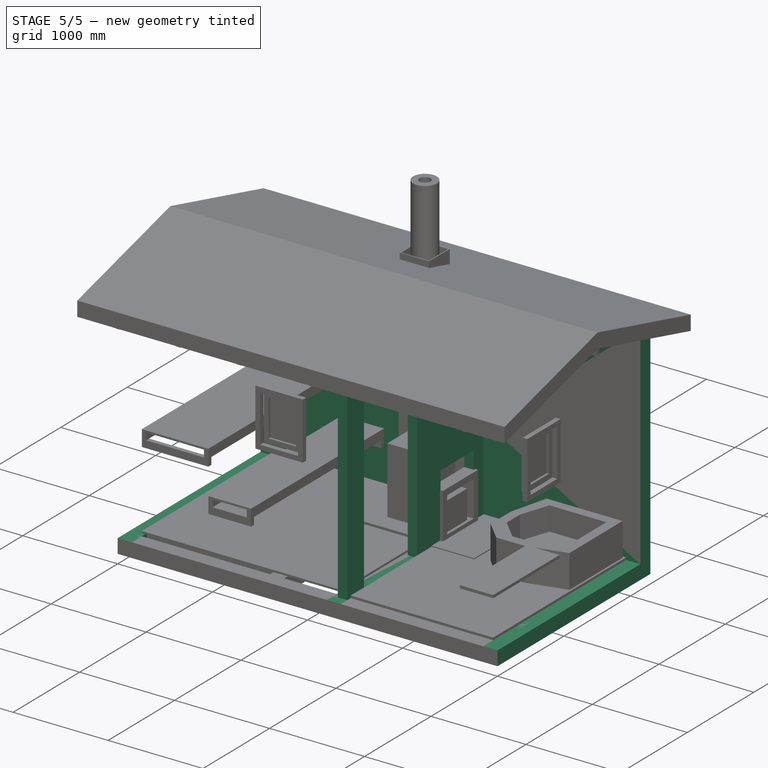
[diagram: stage 5 of 5 — iso view after this stage's code; geometry added in this stage tinted green]
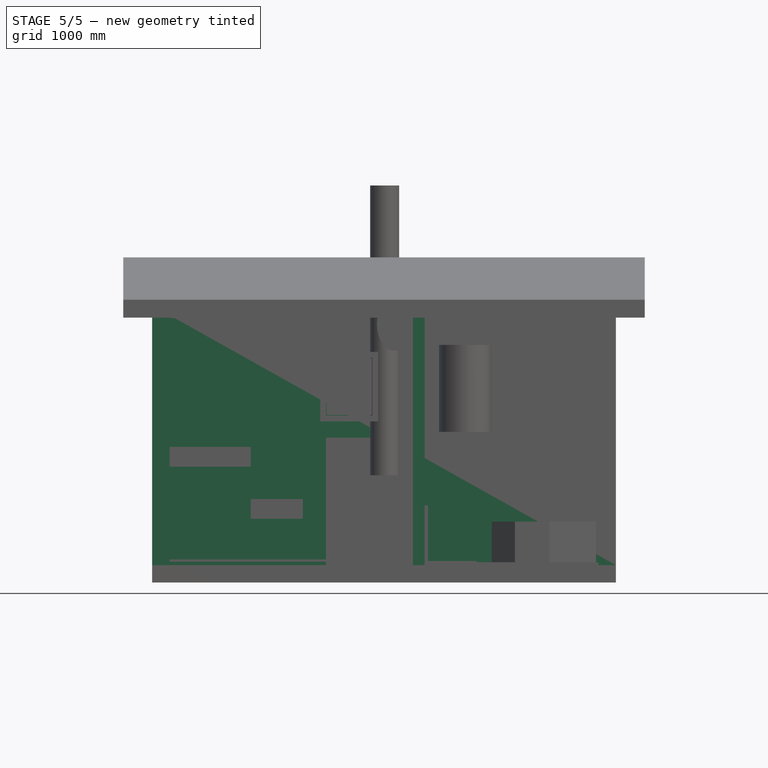
[diagram: stage 5 of 5 — front view after this stage's code; geometry added in this stage tinted green]
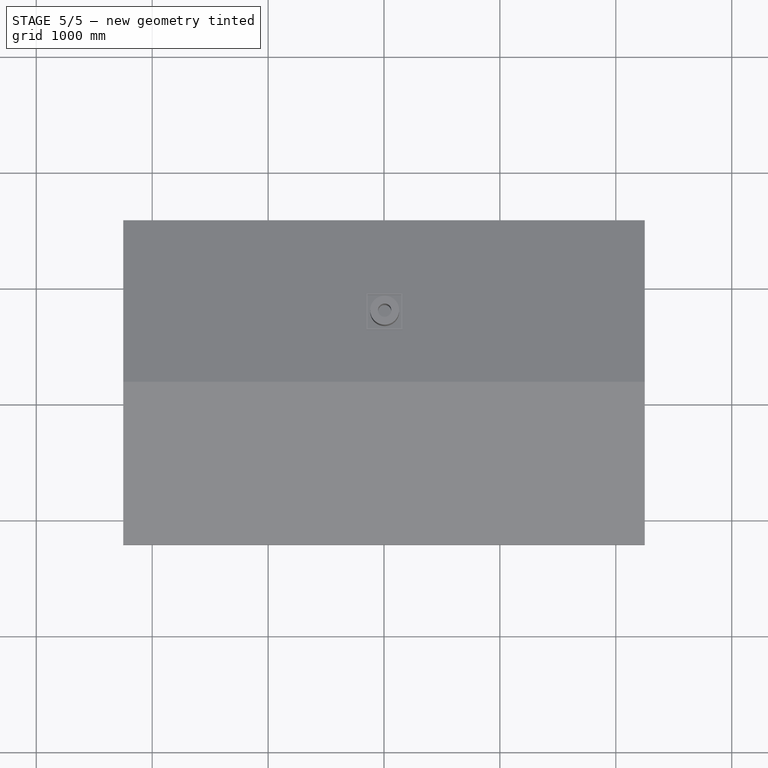
[diagram: stage 5 of 5 — top view after this stage's code; geometry added in this stage tinted green]
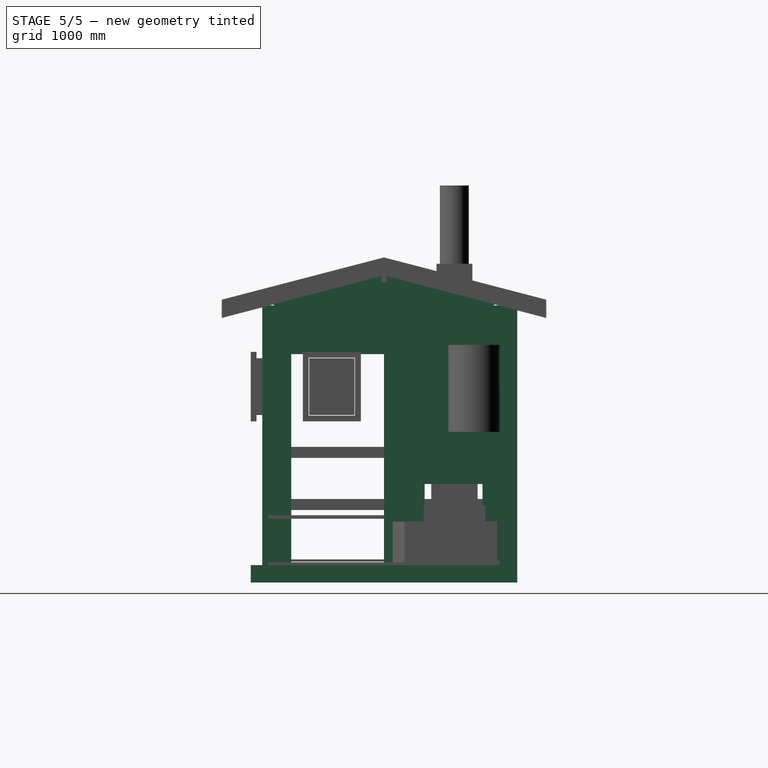
[diagram: stage 5 of 5 — right view after this stage's code; geometry added in this stage tinted green]
FEATURE [Part::FeaturePython] Structure003  # Arch/BIM object (typed FeaturePython)
  Base = -> Rectangle020
  FaceMaker = 0
  Height = 2240
  HorizontalArea = 600000
  IfcRole = 0
  Length = 0
  MoveWithHost = false
  Nodes = (2) [(2000,2225,0),(2000,2225,2240)]
  NodesOffset = 0
  Normal = (0,0,0)
  PerimeterLength = 8300
  VerticalArea = 1.8592e+07
  Width = 100
FEATURE [Part::Part2DObjectPython] Rectangle029  label="перегородка_брус_100х151"  # Draft 2D object (typed FeaturePython)
  ChamferSize = 0
  Columns = 1
  FilletRadius = 0
  Height = 200
  Length = 100
  MakeFace = false
  Placement = pos=(2250,2000,0) rot=(0,0,1;0rad)
  Rows = 1
FEATURE [Part::Part2DObjectPython] Rectangle030  label="перегородка_брус_100х152"  # Draft 2D object (typed FeaturePython)
  ChamferSize = 0
  Columns = 1
  FilletRadius = 0
  Height = 350
  Length = 100
  MakeFace = false
  Placement = pos=(2250,1150,0) rot=(0,0,1;0rad)
  Rows = 1
FEATURE [Part::Part2DObjectPython] Rectangle031  label="перегородка_брус_100х153"  # Draft 2D object (typed FeaturePython)
  ChamferSize = 0
  Columns = 1
  FilletRadius = 0
  Height = 250
  Length = 100
  MakeFace = false
  Placement = pos=(2250,100,0) rot=(0,0,1;0rad)
  Rows = 1
FEATURE [Part::FeaturePython] Structure011  # Arch/BIM object (typed FeaturePython)
  Base = -> Rectangle031
  FaceMaker = 0
  Height = 1820
  HorizontalArea = 25000
  IfcRole = 0
  Length = 0
  MoveWithHost = false
  Nodes = (2) [(2300,225,0),(2300,225,1820)]
  NodesOffset = 0
  Normal = (0,0,0)
  PerimeterLength = 700
  VerticalArea = 1.274e+06
  Width = 100
FEATURE [Part::FeaturePython] Structure012  # Arch/BIM object (typed FeaturePython)
  Base = -> Rectangle030
  FaceMaker = 0
  Height = 700
  HorizontalArea = 35000
  IfcRole = 0
  Length = 0
  MoveWithHost = false
  Nodes = (2) [(2300,1325,0),(2300,1325,700)]
  NodesOffset = 0
  Normal = (0,0,0)
  PerimeterLength = 900
  VerticalArea = 630000
  Width = 100
FEATURE [Part::FeaturePython] Structure013  # Arch/BIM object (typed FeaturePython)
  Base = -> Rectangle029
  FaceMaker = 0
  Height = 700
  HorizontalArea = 20000
  IfcRole = 0
  Length = 0
  MoveWithHost = false
  Nodes = (2) [(2300,2100,0),(2300,2100,700)]
  NodesOffset = 0
  Normal = (0,0,0)
  PerimeterLength = 600
  VerticalArea = 420000
  Width = 100
FEATURE [Part::FeaturePython] Structure014  # Arch/BIM object (typed FeaturePython)
  Base = -> Rectangle024
  FaceMaker = 0
  Height = 420
  HorizontalArea = 210000
  IfcRole = 0
  Length = 0
  MoveWithHost = false
  Nodes = (2) [(2300,1150,0),(2300,1150,420)]
  NodesOffset = 0
  Normal = (0,0,0)
  PerimeterLength = 4400
  Placement = pos=(0,0,1820) rot=(0,0,1;0rad)
  VerticalArea = 1848000
  Width = 100
FEATURE [Part::Part2DObjectPython] Rectangle032  label="перегородка_брус_100х154"  # Draft 2D object (typed FeaturePython)
  ChamferSize = 0
  Columns = 1
  FilletRadius = 0
  Height = 1050
  Length = 100
  MakeFace = false
  Placement = pos=(2250,1150,0) rot=(0,0,1;0rad)
  Rows = 1
FEATURE [Part::FeaturePython] Structure015  # Arch/BIM object (typed FeaturePython)
  Base = -> Rectangle032
  FaceMaker = 0
  Height = 1120
  HorizontalArea = 105000
  IfcRole = 0
  Length = 0
  MoveWithHost = false
  Nodes = (2) [(2300,1675,0),(2300,1675,1120)]
  NodesOffset = 0
  Normal = (0,0,0)
  PerimeterLength = 2300
  Placement = pos=(0,0,700) rot=(0,0,1;0rad)
  VerticalArea = 2576000
  Width = 100
FEATURE [Part::Part2DObjectPython] Rectangle033  # Draft 2D object (typed FeaturePython)
  ChamferSize = 0
  Columns = 1
  FilletRadius = 0
  Height = 140
  Length = 1900
  MakeFace = false
  Placement = pos=(4000,200,2100) rot=(0.57735,0.57735,0.57735;2.0944rad)
  Rows = 1
  Support = -> [Structure007]
FEATURE [Part::Part2DObjectPython] Rectangle035  # Draft 2D object (typed FeaturePython)
  ChamferSize = 0
  Columns = 1
  FilletRadius = 0
  Height = 140
  Length = 1000
  MakeFace = false
  Placement = pos=(4000,650,2240) rot=(0.57735,0.57735,0.57735;2.0944rad)
  Rows = 1
  Support = -> [Structure007]
FEATURE [Part::Part2DObjectPython] Line023  # Draft 2D object (typed FeaturePython)
  ChamferSize = 0
  Closed = false
  End = (4000,1150,2100)
  FilletRadius = 0
  Length = 300
  MakeFace = false
  Placement = pos=(4000,1150,2400) rot=(0.57735,0.57735,0.57735;2.0944rad)
  Points = (2) [(0,0,0),(0,-300,0)]
  Start = (4000,1150,2400)
  Subdivisions = 0
FEATURE [Part::Part2DObjectPython] Line024  # Draft 2D object (typed FeaturePython)
  ChamferSize = 0
  Closed = false
  End = (4000,0,2100)
  FilletRadius = 0
  Length = 1188.49
  MakeFace = false
  Placement = pos=(4000,1150,2400) rot=(0.57735,0.57735,0.57735;2.0944rad)
  Points = (2) [(0,0,0),(-1150,-300,0)]
  Start = (4000,1150,2400)
  Subdivisions = 0
FEATURE [Part::Part2DObjectPython] Line025  # Draft 2D object (typed FeaturePython)
  ChamferSize = 0
  Closed = false
  End = (4000,2300,2100)
  FilletRadius = 0
  Length = 1188.49
  MakeFace = false
  Placement = pos=(4000,1150,2400) rot=(0.57735,0.57735,0.57735;2.0944rad)
  Points = (2) [(0,0,0),(1150,-300,0)]
  Start = (4000,1150,2400)
  Subdivisions = 0
FEATURE [Part::Part2DObjectPython] Wire  label="фронтон_брус_150х150"  # Draft 2D object (typed FeaturePython)
  ChamferSize = 0
  Closed = true
  End = (4000,2100,2240)
  FilletRadius = 0
  Length = 3926.88
  MakeFace = false
  Placement = pos=(4000,200,2240) rot=(0.57735,0.57735,0.57735;2.0944rad)
  Points = (6) [(0,0,0),(0,52.1739,0),(336.667,140,0),(1563.33,140,0),(1900,52.1739,0),(1900,1.36424e-12,-3.18323e-12)]
  Start = (4000,200,2240)
  Subdivisions = 0
FEATURE [Part::Part2DObjectPython] Wire001  label="фронтон_брус_150х151"  # Draft 2D object (typed FeaturePython)
  ChamferSize = 0
  Closed = true
  End = (4000,1650,2380)
  FilletRadius = 0
  Length = 2087.47
  MakeFace = false
  Placement = pos=(4000,650,2380) rot=(0.57735,0.57735,0.57735;2.0944rad)
  Points = (6) [(0,0,0),(0,29.5652,0),(423.333,140,0),(576.667,140,0),(1000,29.5652,0),(1000,1.36424e-12,0)]
  Start = (4000,650,2380)
  Subdivisions = 0
FEATURE [Part::FeaturePython] Structure016  # Arch/BIM object (typed FeaturePython)
  Base = -> Wire
  FaceMaker = 0
  Height = 140
  HorizontalArea = 77466.7
  IfcRole = 0
  Length = 0
  MoveWithHost = false
  Nodes = (2) [(4000,1150,2164.91),(4000,1150,2024.91)]
  NodesOffset = 0
  Normal = (0,0,0)
  PerimeterLength = 0
  VerticalArea = 487472
  Width = 100
FEATURE [Part::FeaturePython] Structure017  # Arch/BIM object (typed FeaturePython)
  Base = -> Wire001
  FaceMaker = 0
  Height = 140
  HorizontalArea = 0
  IfcRole = 0
  Length = 0
  MoveWithHost = false
  Nodes = (2) [(4000,1150,2293.36),(4000,1150,2153.36)]
  NodesOffset = 0
  Normal = (0,0,0)
  PerimeterLength = 0
  VerticalArea = 194777
  Width = 100
FEATURE [Part::FeaturePython] Structure018  # Arch/BIM object (typed FeaturePython)
  Base = -> Wire
  FaceMaker = 0
  Height = 100
  HorizontalArea = 55333.3
  IfcRole = 0
  Length = 0
  MoveWithHost = false
  Nodes = (2) [(4000,1150,2164.91),(4000,1150,2024.91)]
  NodesOffset = 0
  Normal = (0,0,0)
  PerimeterLength = 0
  Placement = pos=(-1650,-2.27e-13,0) rot=(0,0,1;0rad)
  VerticalArea = 483299
  Width = 100
FEATURE [Part::FeaturePython] Structure019  # Arch/BIM object (typed FeaturePython)
  Base = -> Wire001
  FaceMaker = 0
  Height = 100
  HorizontalArea = 0
  IfcRole = 0
  Length = 0
  MoveWithHost = false
  Nodes = (2) [(4000,1150,2293.36),(4000,1150,2153.36)]
  NodesOffset = 0
  Normal = (0,0,0)
  PerimeterLength = 0
  Placement = pos=(-1650,-2.27e-13,0) rot=(0,0,1;0rad)
  VerticalArea = 192412
  Width = 100
FEATURE [App::GeometryPython] BuildingPart001  label="перегородка брус 100х150 15в.+2в."  # Arch/BIM object (typed FeaturePython)
  Area = 0
  Group = -> [Structure011,Structure014,Structure013,Structure012,Structure015,Structure018,Structure019]
  Height = 0
  IfcRole = 0
  LevelOffset = 0
FEATURE [Part::FeaturePython] Structure020  # Arch/BIM object (typed FeaturePython)
  Base = -> Wire001
  FaceMaker = 0
  Height = 140
  HorizontalArea = 0
  IfcRole = 0
  Length = 0
  MoveWithHost = false
  Nodes = (2) [(4000,1150,2293.36),(4000,1150,2153.36)]
  NodesOffset = 0
  Normal = (0,0,0)
  PerimeterLength = 0
  Placement = pos=(-3850,0,0) rot=(0,0,1;0rad)
  VerticalArea = 194777
  Width = 100
FEATURE [Part::FeaturePython] Structure021  # Arch/BIM object (typed FeaturePython)
  Base = -> Wire
  FaceMaker = 0
  Height = 140
  HorizontalArea = 77466.7
  IfcRole = 0
  Length = 0
  MoveWithHost = false
  Nodes = (2) [(4000,1150,2164.91),(4000,1150,2024.91)]
  NodesOffset = 0
  Normal = (0,0,0)
  PerimeterLength = 0
  Placement = pos=(-3850,0,0) rot=(0,0,1;0rad)
  VerticalArea = 487472
  Width = 100
FEATURE [Part::Part2DObjectPython] Rectangle040  label="обвязка_брус_150х150_001"  # Draft 2D object (typed FeaturePython)
  ChamferSize = 0
  Columns = 1
  FilletRadius = 0
  Height = 2300
  Length = 150
  MakeFace = false
  Placement = pos=(2200,0,0) rot=(0,0,1;0rad)
  Rows = 1
FEATURE [Part::Part2DObjectPython] Rectangle041  label="обвязка_брус_150х150_002"  # Draft 2D object (typed FeaturePython)
  ChamferSize = 0
  Columns = 1
  FilletRadius = 0
  Height = 2300
  Length = 150
  MakeFace = false
  Rows = 1
FEATURE [Part::Part2DObjectPython] Rectangle042  label="обвязка_брус_150х150_003"  # Draft 2D object (typed FeaturePython)
  ChamferSize = 0
  Columns = 1
  FilletRadius = 0
  Height = 2300
  Length = 150
  MakeFace = false
  Placement = pos=(3850,0,0) rot=(0,0,1;0rad)
  Rows = 1
FEATURE [Part::Part2DObjectPython] Rectangle043  label="обвязка_брус_150х150_004"  # Draft 2D object (typed FeaturePython)
  ChamferSize = 0
  Columns = 1
  FilletRadius = 0
  Height = 150
  Length = 4000
  MakeFace = false
  Placement = pos=(0,2150,0) rot=(0,0,1;0rad)
  Rows = 1
FEATURE [Part::Part2DObjectPython] Rectangle044  label="обвязка_брус_150х150_005"  # Draft 2D object (typed FeaturePython)
  ChamferSize = 0
  Columns = 1
  FilletRadius = 0
  Height = 150
  Length = 4000
  MakeFace = false
  Placement = pos=(0,-2.449e-13,0) rot=(0,0,1;0rad)
  Rows = 1
FEATURE [Part::FeaturePython] Structure024  label="Structure023"  # Arch/BIM object (typed FeaturePython)
  Base = -> Rectangle040
  FaceMaker = 0
  Height = 150
  HorizontalArea = 345000
  IfcRole = 0
  Length = 0
  MoveWithHost = false
  Nodes = (2) [(2275,1150,0),(2275,1150,150)]
  NodesOffset = 0
  Normal = (0,0,0)
  PerimeterLength = 4900
  Placement = pos=(0,0,-150) rot=(0,0,1;0rad)
  VerticalArea = 735000
  Width = 100
FEATURE [Part::FeaturePython] Structure026  label="Structure025"  # Arch/BIM object (typed FeaturePython)
  Base = -> Rectangle042
  FaceMaker = 0
  Height = 150
  HorizontalArea = 345000
  IfcRole = 0
  Length = 0
  MoveWithHost = false
  Nodes = (2) [(3925,1150,0),(3925,1150,150)]
  NodesOffset = 0
  Normal = (0,0,0)
  PerimeterLength = 4900
  Placement = pos=(0,0,-150) rot=(0,0,1;0rad)
  VerticalArea = 735000
  Width = 100
FEATURE [Part::FeaturePython] Structure027  label="Structure026"  # Arch/BIM object (typed FeaturePython)
  Base = -> Rectangle041
  FaceMaker = 0
  Height = 150
  HorizontalArea = 345000
  IfcRole = 0
  Length = 0
  MoveWithHost = false
  Nodes = (2) [(75,1150,0),(75,1150,150)]
  NodesOffset = 0
  Normal = (0,0,0)
  PerimeterLength = 4900
  Placement = pos=(0,0,-150) rot=(0,0,1;0rad)
  VerticalArea = 735000
  Width = 100
FEATURE [Part::FeaturePython] Structure028  label="Structure027"  # Arch/BIM object (typed FeaturePython)
  Base = -> Rectangle043
  FaceMaker = 0
  Height = 150
  HorizontalArea = 600000
  IfcRole = 0
  Length = 0
  MoveWithHost = false
  Nodes = (2) [(2000,2225,0),(2000,2225,150)]
  NodesOffset = 0
  Normal = (0,0,0)
  PerimeterLength = 8300
  Placement = pos=(0,0,-150) rot=(0,0,1;0rad)
  VerticalArea = 1.245e+06
  Width = 100
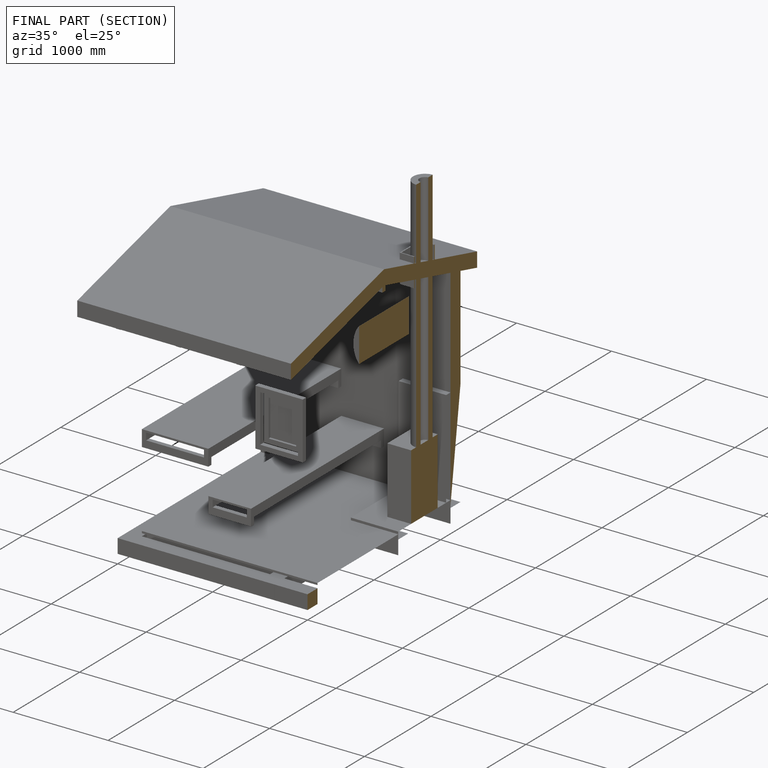
[diagram: finished part — half-section view (interior)]
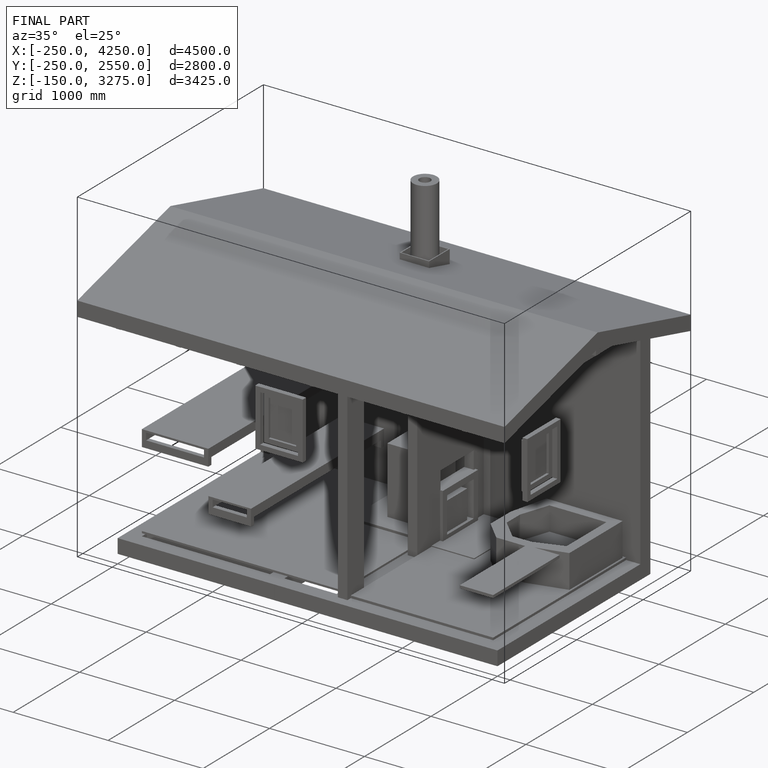
[diagram: finished part — iso view with bounding-box wireframe]
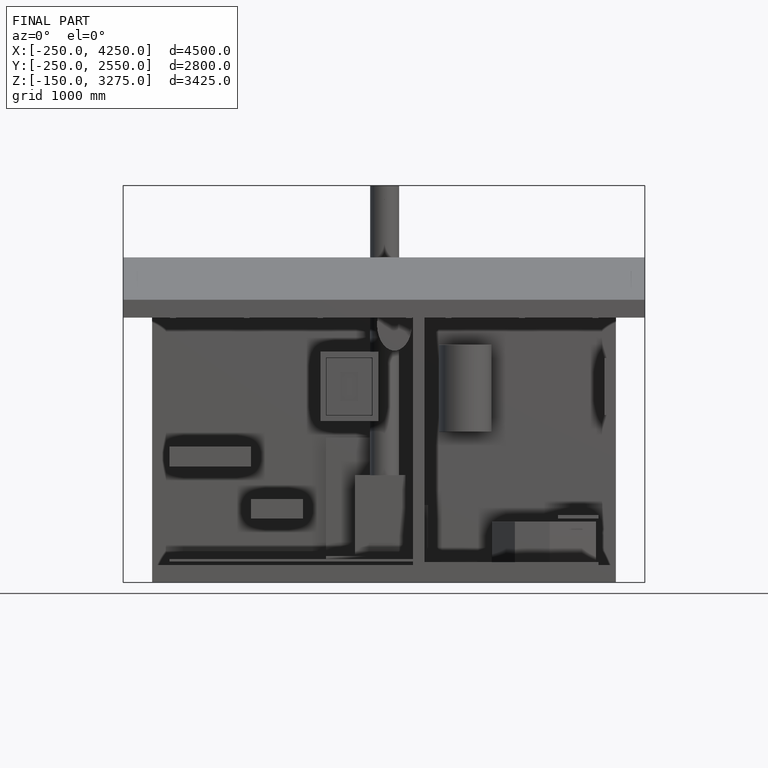
[diagram: finished part — front view with bounding-box wireframe]
